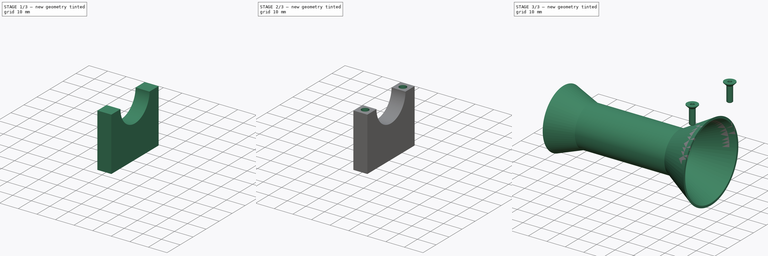
[diagram: build sequence overview — one tinted view per stage of 3, left to right]
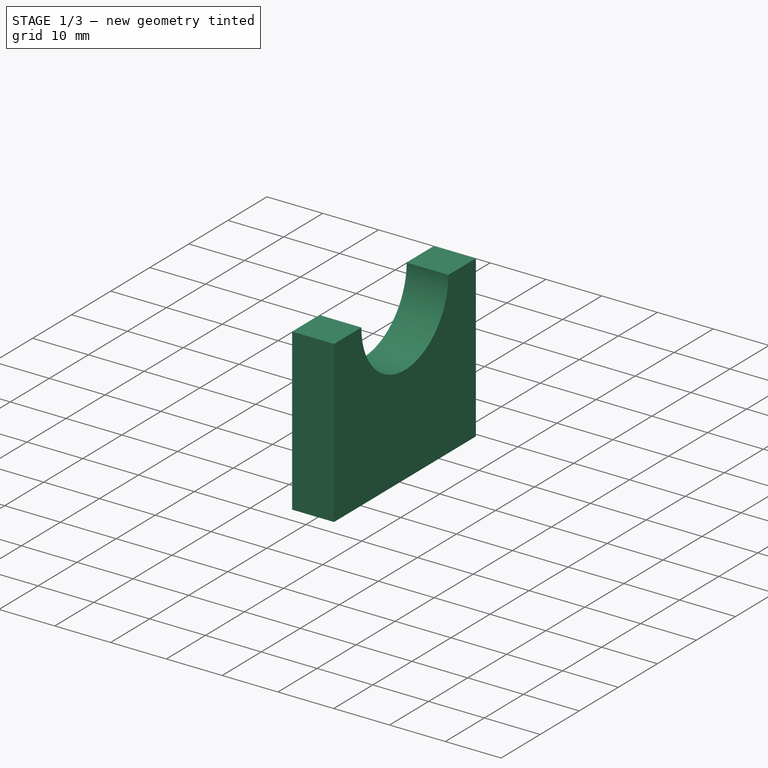
[diagram: stage 1 of 3 — iso view after this stage's code; geometry added in this stage tinted green]
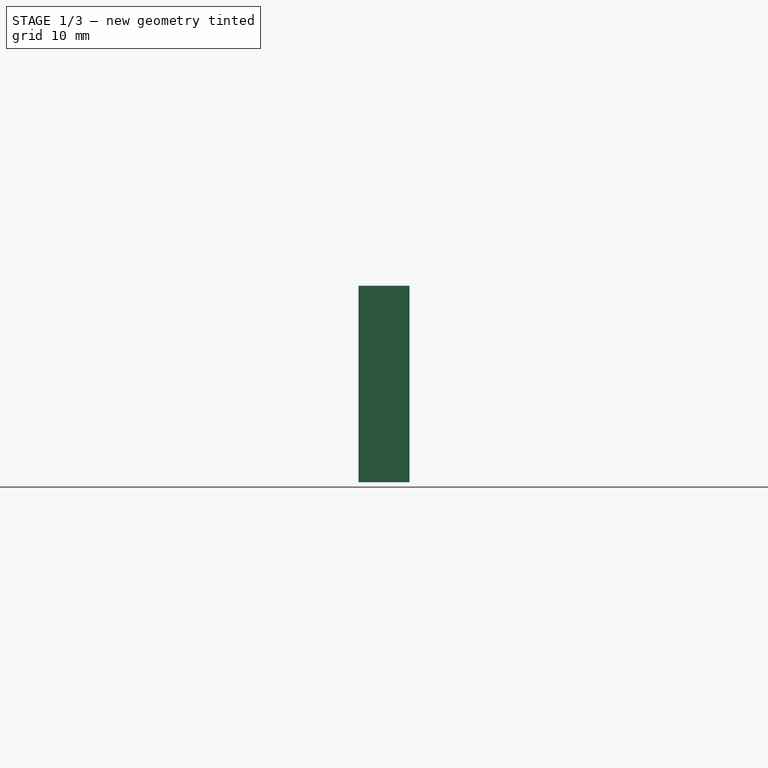
[diagram: stage 1 of 3 — front view after this stage's code; geometry added in this stage tinted green]
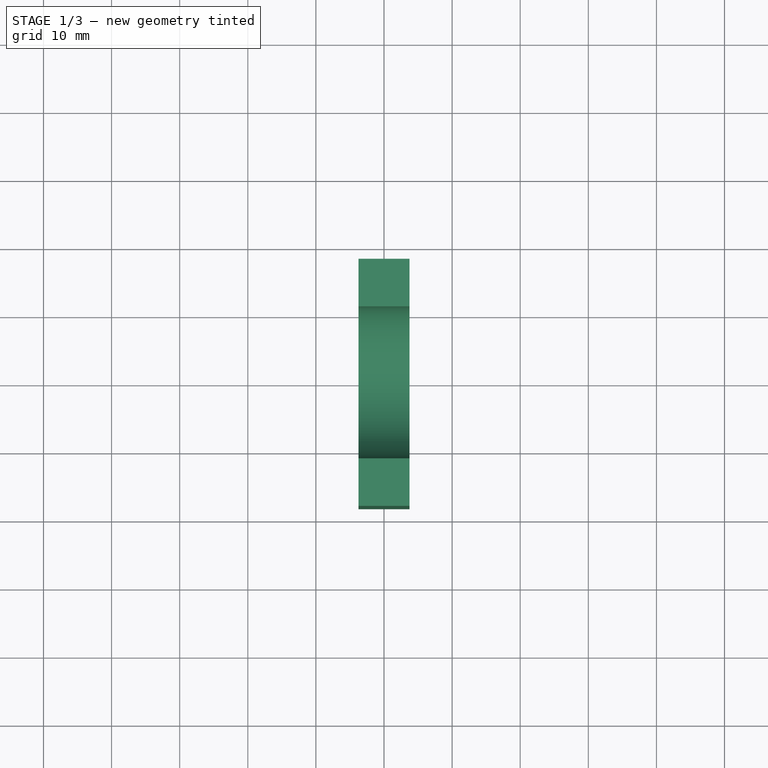
[diagram: stage 1 of 3 — top view after this stage's code; geometry added in this stage tinted green]
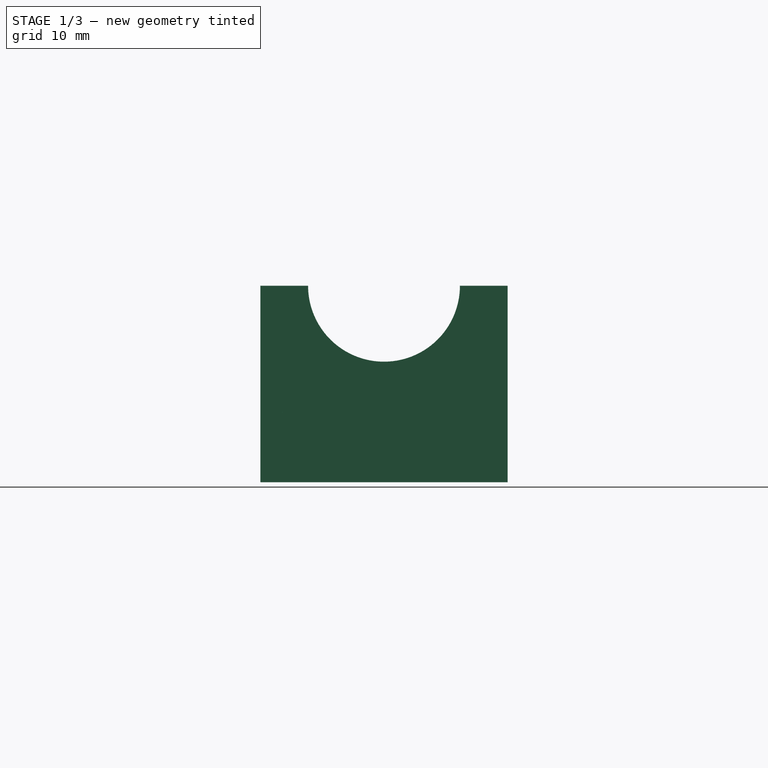
[diagram: stage 1 of 3 — right view after this stage's code; geometry added in this stage tinted green]
FCSTD DOCUMENT  (FreeCAD 1.0RUnknown)
Label: Viewscope
License: All rights reserved
LicenseURL: http://en.wikipedia.org/wiki/All_rights_reserved
objects: PartDesign::CoordinateSystem×7, Sketcher::SketchObject×4, App::Link×4, App::Part×4, App::DocumentObjectGroup×3, PartDesign::Body×3, PartDesign::Hole×3, PartDesign::Pad×2, PartDesign::SubShapeBinder×2, Part::FeaturePython×2, App::FeaturePython×1, PartDesign::Revolution×1
note: 40 computed .brp shape members not serialized (recipe doc carries the construction recipe); baked Part::Feature solids carry a one-line shape summary decoded from their .brp
EXTERNAL_REF file=Resources.FCStd obj=Spreadsheet
EXTERNAL_REF file=Sextant.FCStd obj=Assembly

FEATURE [Sketcher::SketchObject] Sketch002
  ArcFitTolerance = 0
  AttachmentSupport = -> [XZ_Plane007]
  FullyConstrained = true
  MakeInternals = false
  MapMode = 5
  Placement = pos=(0,0,0) rot=(1,0,0;1.5708rad)
  expr: Constraints[30] = <<Dimensions>>.viewscope_wall_thickness
  expr: Constraints[35] = <<Dimensions>>.viewscope_inner_diameter / 2
  expr: Constraints[8] = <<Dimensions>>.viewscope_eye_diameter / 2
  sketch-geometry (12):
    g0: LineSegment StartX=-66.0863 StartY=11 StartZ=0 EndX=-17.5885 EndY=11 EndZ=0
    g1: LineSegment StartX=-17.5885 StartY=11 StartZ=0 EndX=0 EndY=21.1547 EndZ=0
    g2: LineSegment StartX=-66.2626 StartY=10 StartZ=0 EndX=-17.3205 EndY=10 EndZ=0
    g3: LineSegment StartX=-17.3205 StartY=10 StartZ=0 EndX=0 EndY=20 EndZ=0
    g4: LineSegment StartX=0 StartY=21.1547 StartZ=0 EndX=0 EndY=20 EndZ=0
    g5: LineSegment [constr] StartX=0 StartY=20 StartZ=0 EndX=-0.5 EndY=20.866 EndZ=0
    g6: LineSegment StartX=-66.0863 StartY=11 StartZ=0 EndX=-80 EndY=16.0642 EndZ=0
    g7: LineSegment StartX=-66.2626 StartY=10 StartZ=0 EndX=-80 EndY=15 EndZ=0
    g8: LineSegment StartX=-80 StartY=16.0642 StartZ=0 EndX=-80 EndY=15 EndZ=0
    g9: LineSegment [constr] StartX=-80 StartY=15 StartZ=0 EndX=-80 EndY=0 EndZ=0
    g10: LineSegment [constr] StartX=-66.0863 StartY=11 StartZ=0 EndX=-66.0863 EndY=10 EndZ=0
    g11: LineSegment [constr] StartX=-80 StartY=15 StartZ=0 EndX=-79.658 EndY=15.9397 EndZ=0
  constraints (36):
    c: Horizontal(g0)
    c: Coincident(g1,g0)
    c: Horizontal(g2)
    c: Coincident(g3,g2)
    c: Coincident(g4,g1)
    c: Coincident(g4,g3)
    c: Vertical(g4)
    c: PointOnObject(g3,g-2)
    c: Distance(g-1,g3) = 20
    c: Angle(g3,g-2) = 1.0472
    c: Coincident(g5,g3)
    c: PointOnObject(g5,g1)
    c: Perpendicular(g1,g5)
    c: Parallel(g1,g3)
    c: Coincident(g6,g0)
    c: Coincident(g8,g6)
    c: Coincident(g8,g7)
    c: DistanceX(g6,g1) = 80
    c: Coincident(g7,g2)
    c: Vertical(g8)
    c: Coincident(g9,g8)
    c: Vertical(g9)
    c: Angle(g9,g7) = 1.22173
    c: Parallel(g6,g7)
    c: Coincident(g10,g0)
    c: Coincident(g11,g7)
    c: PointOnObject(g11,g6)
    c: Perpendicular(g6,g11)
    c: PointOnObject(g10,g2)
    c: Perpendicular(g2,g10)
    c: Distance(g10) = 1
    c: Equal(g10,g11)
    c: Equal(g10,g5)
    c: DistanceY(g9,g9) = 15
    c: PointOnObject(g9,g-1)
    c: DistanceY(g2) = 10
FEATURE [PartDesign::CoordinateSystem] LCS_Origin
  AttacherType = Attacher::AttachEngine3D
  AttachmentSupport = -> [X_Axis]
  MapMode = 2
FEATURE [App::DocumentObjectGroup] Constraints
FEATURE [App::FeaturePython] Variables  # WARN: FeaturePython — macro-defined, semantics opaque (R4)
  Type = App::PropertyContainer
FEATURE [App::DocumentObjectGroup] Configurations
FEATURE [PartDesign::CoordinateSystem] LCS_Origin001
  AttacherType = Attacher::AttachEngine3D
  AttachmentSupport = -> [X_Axis008]
  MapMode = 2
FEATURE [Sketcher::SketchObject] Sketch
  ArcFitTolerance = 0
  AttachmentSupport = -> [YZ_Plane009]
  FullyConstrained = true
  MakeInternals = false
  MapMode = 5
  Placement = pos=(0,0,0) rot=(0.57735,0.57735,0.57735;2.0944rad)
  expr: Constraints[15] = <<Dimensions>>.view_center_offset_hor - <<Dimensions>>.viewscope_collar_gap / 2
  expr: Constraints[16] = <<Dimensions>>.viewscope_collar_width
  expr: Constraints[8] = <<Dimensions>>.viewscope_inner_diameter / 2 + <<Dimensions>>.viewscope_wall_thickness + <<Dimensions>>.clearance_tight_fit
  sketch-geometry (6):
    g0: LineSegment StartX=-18.15 StartY=28.85 StartZ=0 EndX=-18.15 EndY=0 EndZ=0
    g1: LineSegment StartX=-18.15 StartY=28.85 StartZ=0 EndX=-11.15 EndY=28.85 EndZ=0
    g2: LineSegment StartX=18.15 StartY=0 StartZ=0 EndX=18.15 EndY=28.85 EndZ=0
    g3: LineSegment StartX=18.15 StartY=28.85 StartZ=0 EndX=11.15 EndY=28.85 EndZ=0
    g4: ArcOfCircle CenterX=0 CenterY=28.85 CenterZ=0 NormalX=0 NormalY=0 NormalZ=1 AngleXU=0 Radius=11.15 StartAngle=3.14159 EndAngle=6.28319
    g5: LineSegment StartX=-18.15 StartY=0 StartZ=0 EndX=18.15 EndY=0 EndZ=0
  constraints (19):
    c: PointOnObject(g0,g-1)
    c: Vertical(g0)
    c: Coincident(g1,g0)
    c: PointOnObject(g2,g-1)
    c: Vertical(g2)
    c: Coincident(g3,g2)
    c: PointOnObject(g4,g-2)
    c: Coincident(g4,g1)
    c: Radius(g4) = 11.15
    c: Perpendicular(g4,g1)
    c: Coincident(g4,g3)
    c: Perpendicular(g4,g3)
    c: Horizontal(g1)
    c: Horizontal(g3)
    c: Equal(g1,g3)
    c: DistanceY(g-1,g4) = 28.85
    c: DistanceX(g3,g3) = 7
    c: Coincident(g5,g0)
    c: Coincident(g2,g5)
FEATURE [PartDesign::Pad] Pad
  Direction = (1,0,0)
  Length = 7.5
  Length2 = 10
  Midplane = true
  Placement = pos=(0,0,0) rot=(1,1,1;2.0944rad)
  Profile = -> Sketch
  ReferenceAxis = -> Sketch [N_Axis]
  Suppressed = false
  Type = 0
  expr: Length = <<Dimensions>>.viewscope_collar_thickness
FEATURE [Sketcher::SketchObject] Sketch003
  ArcFitTolerance = 0
  AttachmentSupport = -> [YZ_Plane011]
  FullyConstrained = true
  MakeInternals = false
  MapMode = 5
  Placement = pos=(0,0,0) rot=(0.57735,0.57735,0.57735;2.0944rad)
  expr: Constraints[3] = <<Dimensions>>.viewscope_inner_diameter / 2 + <<Dimensions>>.viewscope_wall_thickness + <<Dimensions>>.clearance_tight_fit
  expr: Constraints[4] = <<Dimensions>>.viewscope_collar_width
  expr: Constraints[8] = <<Dimensions>>.viewscope_collar_gap / 2
  sketch-geometry (7):
    g0: ArcOfCircle CenterX=0 CenterY=0 CenterZ=0 NormalX=0 NormalY=0 NormalZ=1 AngleXU=0 Radius=11.15 StartAngle=0.103323 EndAngle=3.03827
    g1: LineSegment StartX=-18.0905 StartY=1.15 StartZ=0 EndX=-11.0905 EndY=1.15 EndZ=0
    g2: LineSegment StartX=11.0905 StartY=1.15 StartZ=0 EndX=18.0905 EndY=1.15 EndZ=0
    g3: ArcOfCircle CenterX=0 CenterY=0 CenterZ=0 NormalX=0 NormalY=0 NormalZ=1 AngleXU=0 Radius=18.1271 StartAngle=0.0634837 EndAngle=1.0472
    g4: LineSegment StartX=-9.06353 StartY=15.6985 StartZ=0 EndX=9.06353 EndY=15.6985 EndZ=0
    g5: ArcOfCircle CenterX=0 CenterY=0 CenterZ=0 NormalX=0 NormalY=0 NormalZ=1 AngleXU=0 Radius=18.1271 StartAngle=2.0944 EndAngle=3.07811
    g6: LineSegment [constr] StartX=-9.06353 StartY=15.6985 StartZ=0 EndX=0 EndY=20.9313 EndZ=0
  constraints (20):
    c: Coincident(g0,g-1)
    c: Horizontal(g1)
    c: Coincident(g2,g0)
    c: Radius(g0) = 11.15
    c: Distance(g1) = 7
    c: Coincident(g3,g0)
    c: Coincident(g5,g1)
    c: Coincident(g3,g2)
    c: DistanceY(g0,g1) = 1.15
    c: Tangent(g2,g1)
    c: Coincident(g1,g0)
    c: Horizontal(g4)
    c: Equal(g3,g5)
    c: Coincident(g3,g4)
    c: Coincident(g5,g4)
    c: Coincident(g3,g5)
    c: Coincident(g6,g4)
    c: PointOnObject(g6,g-2)
    c: Tangent(g5,g6)
    c: Angle(g4,g6) = 0.523599
FEATURE [PartDesign::Pad] Pad001
  Direction = (1,0,0)
  Length = 7.5
  Length2 = 10
  Midplane = true
  Placement = pos=(0,0,0) rot=(1,1,1;2.0944rad)
  Profile = -> Sketch003
  ReferenceAxis = -> Sketch003 [N_Axis]
  Suppressed = false
  Type = 0
  expr: Length = <<Dimensions>>.viewscope_collar_thickness
FEATURE [App::Link] CollarTop  label="CollarTop001"
  AttachedBy = #LCS_Origin002
  AttachedTo = ClampBottom#LCS_Center
  AttachmentOffset = pos=(0,0,0) rot=(0,0,1;1.5708rad)
  LinkPlacement = pos=(0,0,28.85) rot=(0,0,1;0rad)
  LinkedObject = -> Part
  Placement = pos=(0,0,28.85) rot=(0,0,1;0rad)
  SolverId = Asm4EE
  expr: Placement = ClampBottom.Placement * LCS_Center.Placement * AttachmentOffset * LCS_Origin002.Placement ^ -1
FEATURE [PartDesign::CoordinateSystem] LCS_Origin002
  AttacherType = Attacher::AttachEngine3D
  AttachmentSupport = -> [X_Axis011]
  MapMode = 2
FEATURE [App::Link] Link  label="Dimensions"
  LinkedObject = -> <external Resources.FCStd>#Spreadsheet
FEATURE [PartDesign::SubShapeBinder] Binder001
  BindCopyOnChange = 0
  BindMode = 0
  ClaimChildren = false
  Context = -> <external Sextant.FCStd>#Assembly [Viewscope.CollarTop.Body_2.Binder001.]
  Fuse = false
  MakeFace = true
  OffsetFill = false
  OffsetIntersection = false
  OffsetJoinType = 0
  OffsetOpenResult = false
  PartialLoad = false
  Placement = pos=(0,0,18) rot=(0,0,1;0rad)
  Relative = true
  Support = -> [Sketch004]
  _Version = 2
  expr: .Placement.Base.z = <<Dimensions>>.viewscope_collar_outer_diameter / 2
FEATURE [PartDesign::Hole] Hole
  BaseFeature = -> Pad001
  CustomThreadClearance = 0
  Depth = 82.1542
  DepthType = 1
  Diameter = 3.4
  DrillForDepth = false
  DrillPoint = 1
  DrillPointAngle = 90
  HoleCutCountersinkAngle = 90
  HoleCutCustomValues = false
  HoleCutDepth = 12.85
  HoleCutDiameter = 6
  HoleCutType = 3
  ModelThread = false
  Placement = pos=(0,0,0) rot=(1,1,1;2.0944rad)
  Profile = -> Binder001
  Suppressed = false
  Tapered = false
  TaperedAngle = 90
  ThreadClass = 0
  ThreadDepth = 82.034
  ThreadDepthType = 0
  ThreadDirection = 0
  ThreadFit = 0
  ThreadSize = 9
  ThreadType = 1
  Threaded = false
  UseCustomThreadClearance = false
  expr: HoleCutDepth = <<Dimensions>>.viewscope_collar_outer_diameter / 2 - <<Dimensions>>.viewscope_collar_gap / 2 - <<Dimensions>>.viewscope_screwhead_support_thickness
  expr: HoleCutDiameter = <<Dimensions>>.viewscope_screw_head_diameter + 2 * <<Dimensions>>.clearance_loose_fit
  expr: ThreadSize = <<Dimensions>>.viewscope_screw_type
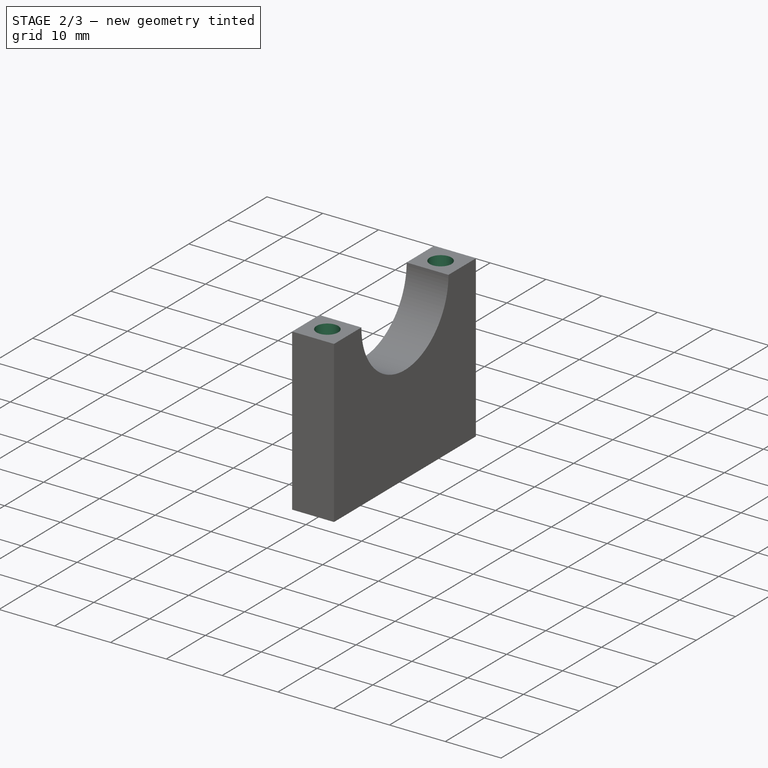
[diagram: stage 2 of 3 — iso view after this stage's code; geometry added in this stage tinted green]
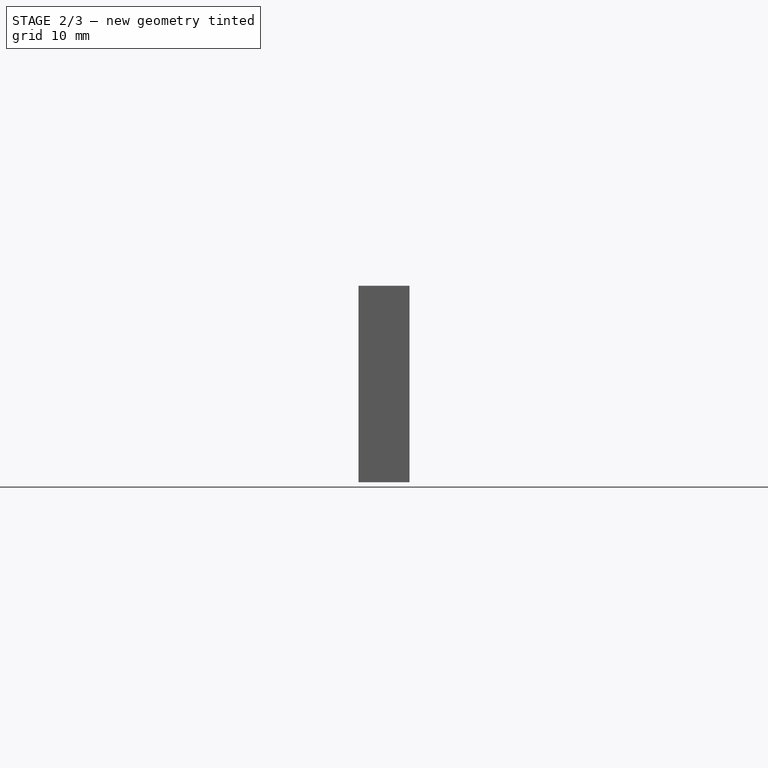
[diagram: stage 2 of 3 — front view after this stage's code; geometry added in this stage tinted green]
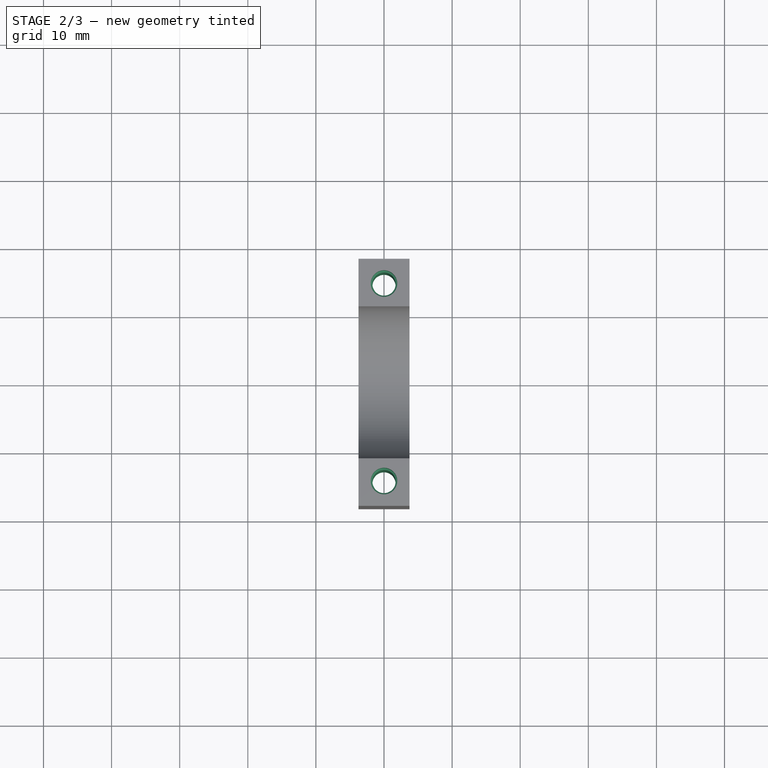
[diagram: stage 2 of 3 — top view after this stage's code; geometry added in this stage tinted green]
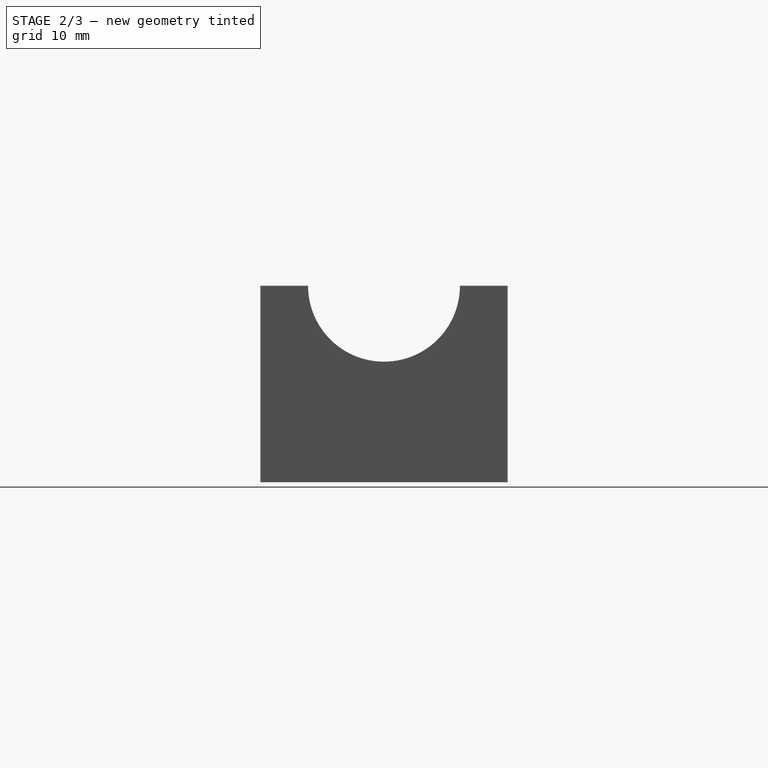
[diagram: stage 2 of 3 — right view after this stage's code; geometry added in this stage tinted green]
FEATURE [PartDesign::Body] Body002
  AllowCompound = false
  Group = -> [Sketch002,Revolution]
  Origin = -> Origin007
  Tip = -> Revolution
FEATURE [App::Link] ClampBottom  label="ClampBottom001"
  AttachedBy = #LCS_Origin001
  AttachedTo = Parent Assembly#LCS_Origin
  LinkedObject = -> HolderBottom
  SolverId = Asm4EE
  expr: Placement = LCS_Origin.Placement * AttachmentOffset * LCS_Origin001.Placement ^ -1
FEATURE [PartDesign::CoordinateSystem] LCS_Center
  AttacherType = Attacher::AttachEngine3D
  AttachmentSupport = -> [Sketch]
  MapMode = 12
  Placement = pos=(0,0,28.85) rot=(0,0,-1;1.5708rad)
FEATURE [PartDesign::CoordinateSystem] LCS_Clamp1  label="LCS_Collar"
  AttacherType = Attacher::AttachEngine3D
  AttachmentSupport = -> [Revolution]
  MapMode = 45
  Placement = pos=(-41.8374,-1e-16,1.8e-15) rot=(0.57735,0.57735,0.57735;2.0944rad)
FEATURE [App::Part] Part001  label="Viewscope"
  Group = -> [Body002,LCS_Clamp1]
  Origin = -> Origin006
FEATURE [App::Link] Viewscope  label="Viewscope001"
  AttachedBy = #LCS_Clamp1
  AttachedTo = ClampBottom#LCS_Center
  AttachmentOffset = pos=(0,0,0) rot=(0,-0.707107,-0.707107;3.14159rad)
  LinkPlacement = pos=(41.8374,1.52e-14,28.85) rot=(0,0,1;0rad)
  LinkedObject = -> Part001
  Placement = pos=(41.8374,1.52e-14,28.85) rot=(0,0,1;0rad)
  SolverId = Asm4EE
  expr: Placement = ClampBottom.Placement * LCS_Center.Placement * AttachmentOffset * LCS_Clamp1.Placement ^ -1
FEATURE [Sketcher::SketchObject] Sketch004
  ArcFitTolerance = 0
  AttachmentSupport = -> [XY_Plane011]
  FullyConstrained = true
  MakeInternals = false
  MapMode = 5
  expr: .Constraints.hole_distance = <<Dimensions>>.viewscope_inner_diameter + 2 * <<Dimensions>>.viewscope_wall_thickness + <<Dimensions>>.viewscope_collar_width
  expr: Constraints[1] = <<Dimensions>>.viewscope_screw_diameter
  sketch-geometry (2):
    g0: Circle CenterX=0 CenterY=14.5 CenterZ=0 NormalX=0 NormalY=0 NormalZ=1 AngleXU=0 Radius=1.5
    g1: Circle CenterX=0 CenterY=-14.5 CenterZ=0 NormalX=0 NormalY=0 NormalZ=1 AngleXU=0 Radius=1.5
  constraints (5):
    c: Equal(g0,g1)
    c: Diameter(g0) = 3
    c: PointOnObject(g1,g-2)
    c: Distance(g0,g1) = 29  'hole_distance'
    c: Symmetric(g1,g0,g-1)
FEATURE [PartDesign::SubShapeBinder] Binder
  BindCopyOnChange = 0
  BindMode = 0
  ClaimChildren = false
  Context = -> HolderBottom [Body.Binder.]
  Fuse = false
  MakeFace = true
  OffsetFill = false
  OffsetIntersection = false
  OffsetJoinType = 0
  OffsetOpenResult = false
  PartialLoad = false
  Relative = true
  Support = -> [Part[Body_2.Hole.Sketch004.]]
  _Version = 2
FEATURE [PartDesign::Hole] Hole001
  BaseFeature = -> Pad
  CustomThreadClearance = 0
  Depth = 94.9755
  DepthType = 1
  Diameter = 3.4
  DrillForDepth = false
  DrillPoint = 1
  DrillPointAngle = 118
  HoleCutCountersinkAngle = 90
  HoleCutCustomValues = false
  HoleCutDepth = 4
  HoleCutDiameter = 3.9
  HoleCutType = 3
  ModelThread = false
  Placement = pos=(0,0,0) rot=(1,1,1;2.0944rad)
  Profile = -> Binder
  Reversed = true
  Suppressed = false
  Tapered = false
  TaperedAngle = 90
  ThreadClass = 0
  ThreadDepth = 94.8812
  ThreadDepthType = 0
  ThreadDirection = 0
  ThreadFit = 0
  ThreadSize = 9
  ThreadType = 1
  Threaded = false
  UseCustomThreadClearance = false
  expr: HoleCutDepth = <<Dimensions>>.viewscope_ti_L
  expr: HoleCutDiameter = <<Dimensions>>.viewscope_ti_D
  expr: ThreadSize = <<Dimensions>>.viewscope_screw_type
FEATURE [PartDesign::Body] Body_2  label="CollarBottomBody"
  AllowCompound = false
  Group = -> [Sketch003,Pad001,Sketch004,Binder001,Hole]
  Origin = -> Origin011
  Tip = -> Hole
FEATURE [PartDesign::CoordinateSystem] LCS_test  label="LCS_Bolt1"
  AttacherType = Attacher::AttachEngine3D
  AttachmentOffset = pos=(0,0,5.15) rot=(0,0,1;0rad)
  AttachmentSupport = -> [Sketch004]
  MapMode = 11
  Placement = pos=(0,-14.5,5.15) rot=(0,0,1;1.5708rad)
  expr: .AttachmentOffset.Base.z = <<Dimensions>>.viewscope_collar_gap / 2 + <<Dimensions>>.viewscope_screwhead_support_thickness
FEATURE [PartDesign::CoordinateSystem] LCS_Bolt2
  AttacherType = Attacher::AttachEngine3D
  AttachmentOffset = pos=(0,0,5.15) rot=(0,0,1;0rad)
  AttachmentSupport = -> [Sketch004]
  MapMode = 11
  Placement = pos=(0,14.5,5.15) rot=(0,0,1;1.5708rad)
  expr: .AttachmentOffset.Base.z = <<Dimensions>>.viewscope_collar_gap / 2 + <<Dimensions>>.viewscope_screwhead_support_thickness
FEATURE [App::Part] Part  label="CollarTop"
  Group = -> [Body_2,LCS_Origin002,LCS_test,LCS_Bolt2]
  Origin = -> Origin010
FEATURE [PartDesign::Hole] Hole002
  BaseFeature = -> Hole001
  CustomThreadClearance = 0
  Depth = 94.9755
  DepthType = 1
  Diameter = 3.4
  DrillForDepth = false
  DrillPoint = 1
  DrillPointAngle = 118
  HoleCutCountersinkAngle = 90
  HoleCutCustomValues = false
  HoleCutDepth = 4
  HoleCutDiameter = 3.9
  HoleCutType = 3
  ModelThread = false
  Placement = pos=(0,0,0) rot=(1,1,1;2.0944rad)
  Profile = -> Hole001 [Edge8,Edge28]
  Suppressed = false
  Tapered = false
  TaperedAngle = 90
  ThreadClass = 0
  ThreadDepth = 94.8812
  ThreadDepthType = 0
  ThreadDirection = 0
  ThreadFit = 0
  ThreadSize = 9
  ThreadType = 1
  Threaded = false
  UseCustomThreadClearance = false
  expr: HoleCutDepth = <<Dimensions>>.viewscope_ti_L
  expr: HoleCutDiameter = <<Dimensions>>.viewscope_ti_D
  expr: ThreadSize = <<Dimensions>>.viewscope_screw_type
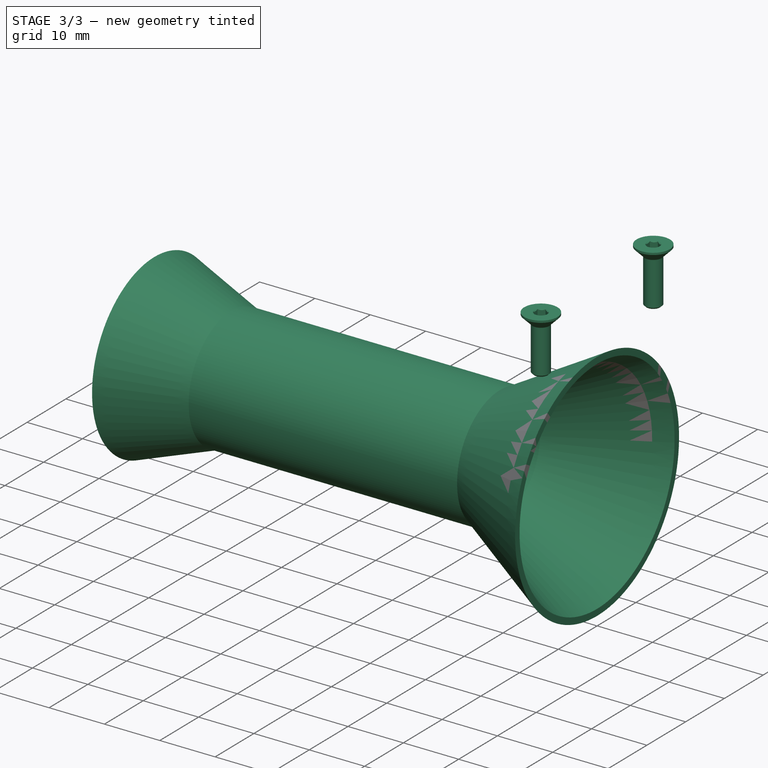
[diagram: stage 3 of 3 — iso view after this stage's code; geometry added in this stage tinted green]
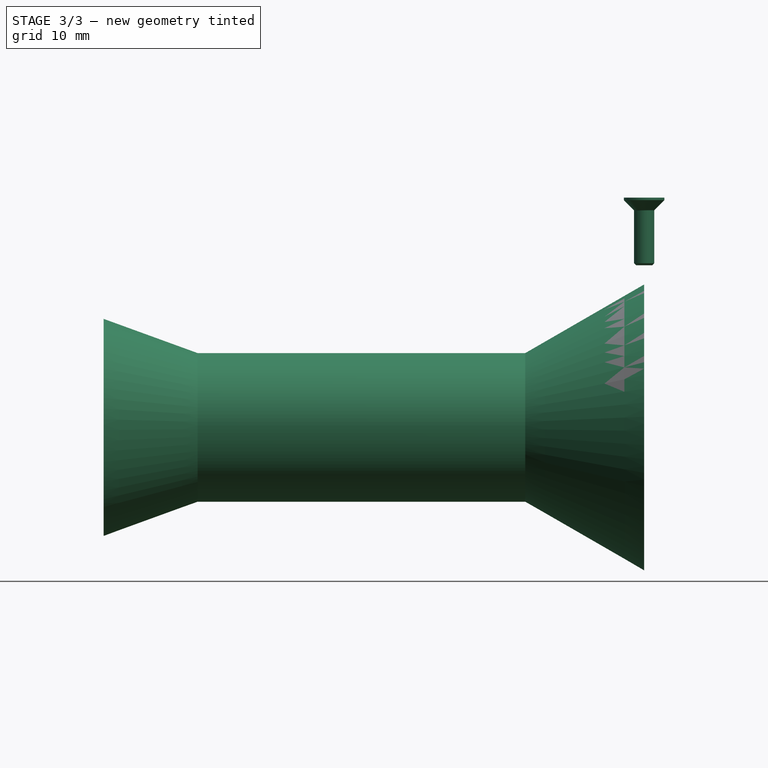
[diagram: stage 3 of 3 — front view after this stage's code; geometry added in this stage tinted green]
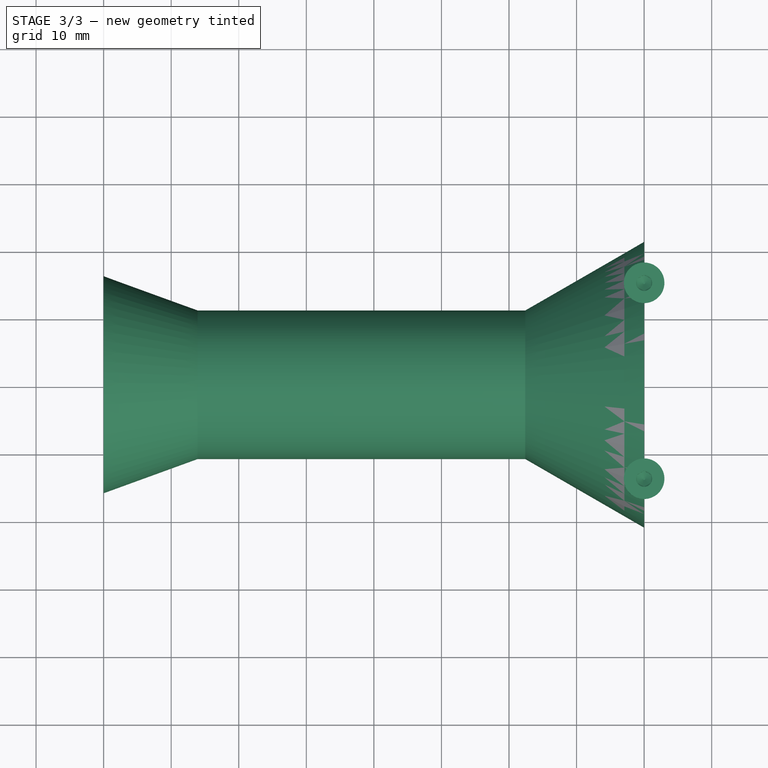
[diagram: stage 3 of 3 — top view after this stage's code; geometry added in this stage tinted green]
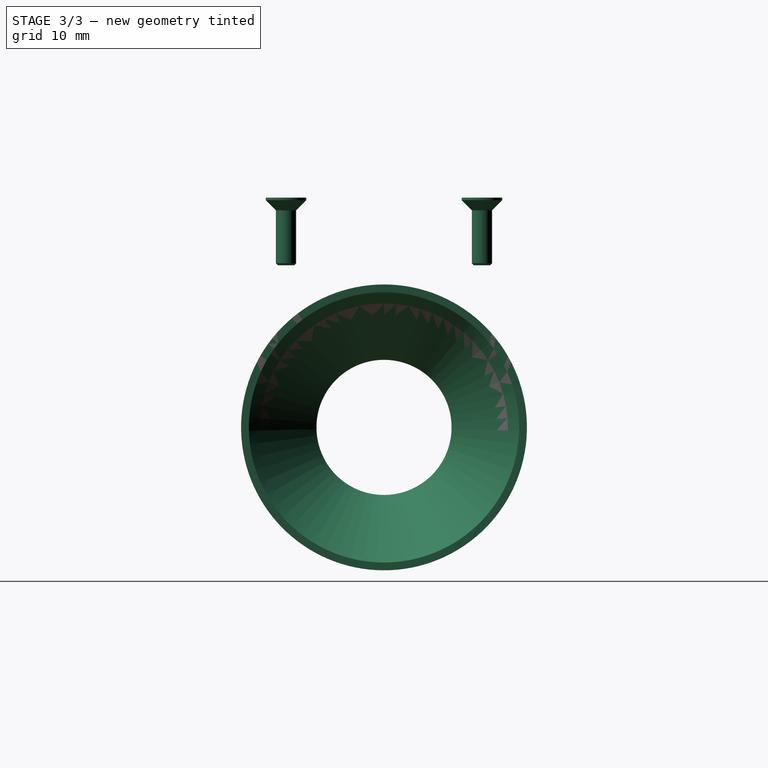
[diagram: stage 3 of 3 — right view after this stage's code; geometry added in this stage tinted green]
FEATURE [PartDesign::Revolution] Revolution
  Angle = 360
  Angle2 = 60
  Axis = (1,0,0)
  Base = (0,0,0)
  Placement = pos=(0,0,0) rot=(1,0,0;1.5708rad)
  Profile = -> Sketch002
  ReferenceAxis = -> Sketch002 [H_Axis]
  Suppressed = false
  Type = 0
FEATURE [PartDesign::Body] Body
  AllowCompound = false
  Group = -> [Sketch,Pad,Binder,Hole001,Hole002]
  Origin = -> Origin009
  Tip = -> Hole002
FEATURE [App::Part] HolderBottom  label="CollarBottom"
  Group = -> [LCS_Origin001,Body,LCS_Center]
  Origin = -> Origin008
FEATURE [App::DocumentObjectGroup] Parts
  Group = -> [Part001,HolderBottom,Part]
FEATURE [Part::FeaturePython] Screw  label="M3x10-Screw001"  # WARN: FeaturePython — macro-defined, semantics opaque (R4)
  AttachedBy = Origin
  AttachedTo = CollarTop#LCS_test
  Diameter = 3
  Invert = false
  LeftHanded = false
  Length = 1
  LengthCustom = 10
  MatchOuter = false
  OffsetAngle = 0
  Placement = pos=(0,-14.5,34) rot=(0,0,1;1.5708rad)
  SolverId = Asm4EE
  Thread = false
  Type = 50
  expr: Diameter = <<Dimensions>>.viewscope_screw_type
  expr: Placement = CollarTop.Placement * LCS_test.Placement * AttachmentOffset
FEATURE [Part::FeaturePython] Screw001  label="M3x10-Screw"  # WARN: FeaturePython — macro-defined, semantics opaque (R4)
  AttachedBy = Origin
  AttachedTo = CollarTop#LCS_Bolt2
  Diameter = 3
  Invert = false
  LeftHanded = false
  Length = 1
  LengthCustom = 10
  MatchOuter = false
  OffsetAngle = 0
  Placement = pos=(0,14.5,34) rot=(0,0,1;1.5708rad)
  SolverId = Asm4EE
  Thread = false
  Type = 50
  expr: Diameter = <<Dimensions>>.viewscope_screw_type
  expr: Placement = CollarTop.Placement * LCS_Bolt2.Placement * AttachmentOffset
FEATURE [App::Part] Assembly
  AssemblyType = Part::Link
  Group = -> [LCS_Origin,Constraints,Variables,Configurations,ClampBottom,Viewscope,CollarTop,Screw,Screw001]
  Origin = -> Origin
  Type = Assembly

RESOLVED EXTERNAL PARTS (link-assembly join: the EXTERNAL_REF files above that resolve inside this repo's crawl, each included once):
---- part Resources.FCStd = doc fcstd_cf5bf867b5fe ----
FCSTD DOCUMENT  (FreeCAD 0.21RUnknown)
Label: Resources
License: All rights reserved
LicenseURL: http://en.wikipedia.org/wiki/All_rights_reserved
objects: Spreadsheet::Sheet×3

FEATURE [Spreadsheet::Sheet] Spreadsheet  label="Dimensions"
  cells = A1='Name; B1='Dimension; C1='Constraints; D1='set by; A3='General; A4='Clearance Loose Fit; B4(clearance_loose_fit)==max(<<Config>>.clearance_loose_fit; 0 mm); C4='>= 0; D4='user; A5='Clearance Tight Fit; B5(clearance_tight_fit)==max(<<Config>>.clearance_tight_fit; 0 mm); C5='>= 0; D5='user; A6='Minimum Wall thickness; B6(minimum_wall_thickness)==max(<<Config>>.minimum_wall_thickness; 0 mm); C6='>= 0; D6='user; A7='View Center Horizontal Offset; B7(view_center_offset_hor)==max(<<Config>>.view_center_offset_hor; 0 mm); C7='>= 0; D7='user; A8='View Center Vertical Offset; B8(view_center_offset_vert)==max(<<Config>>.view_center_offset_vert; 0 mm); C8='>= 0; D8='user; A9='Spacing between Index arm and Frame; B9(index_arm_spacing)==max(<<Config>>.index_arm_spacing; 0 mm); C9='>= 0; D9='user; A10='Screw Hole Extra Depth; B10(screw_hole_extra_depth)==max(0 mm; Spreadsheet001.screw_hole_extra_depth); C10='>= 0; D10='user; A12='Handle; A13='Outer Width; B13(handle_outer_width)==max(<<Config>>.handle_width; minimum_wall_thickness); C13='>= Min wall thickness; D13='user; A14='Inner Width; B14(handle_inner_width)==max(handle_connector_screw_diameter + 2 * minimum_wall_thickness; handle_outer_width - handle_height / 6); C14='>= 2* Min wall thickness +  screw diameter; D14='calc; A15='Height; B15(handle_height)==max(<<Config>>.handle_height; minimum_wall_thickness); C15='>= Min wall thickness; D15='user; A16='Length; B16(handle_length)==max(<<Config>>.handle_length; minimum_wall_thickness); C16='>= Min wall thickness; D16='user; A17='Screw Type; B17(handle_screw_type)==<<Config>>.handle_screw_type; C17='TODO: restrict to M2.M3,M4,M6,M8; D17='user; A18='Connector Screw Diameter; B18(handle_connector_screw_diameter)==handle_screw_type == <<ConfiguartionTables>>.screws_name_m2 ? <<ConfiguartionTables>>.screws_ds_m2 : (handle_screw_type == <<ConfiguartionTables>>.screws_name_m3 ? <<ConfiguartionTables>>.screws_ds_m3 : (handle_screw_type == <<ConfiguartionTables>>.screws_name_m4 ? <<ConfiguartionTables>>.screws_ds_m4 : (handle_screw_type == <<ConfiguartionTables>>.screws_name_m6 ? <<ConfiguartionTables>>.screws_ds_m6 : (handle_screw_type == <<ConfiguartionTables>>.screws_name_m8 ? <<ConfiguartionTables>>.screws_ds_m8 : <<ConfiguartionTables>>.screws_ds_m3)))); C18='none; D18='calc; A19='Screw Countersink Diameter; B19(handle_countersink_diameter)==handle_screw_type == <<ConfiguartionTables>>.screws_name_m2 ? <<ConfiguartionTables>>.screws_dk_10642_m2 : (handle_screw_type == <<ConfiguartionTables>>.screws_name_m3 ? <<ConfiguartionTables>>.screws_dk_10642_m3 : (handle_screw_type == <<ConfiguartionTables>>.screws_name_m4 ? <<ConfiguartionTables>>.screws_dk_10642_m4 : (handle_screw_type == <<ConfiguartionTables>>.screws_name_m6 ? <<ConfiguartionTables>>.screws_dk_10642_m6 : (handle_screw_type == <<ConfiguartionTables>>.screws_name_m8 ? <<ConfiguartionTables>>.screws_dk_10642_m8 : <<ConfiguartionTables>>.screws_dk_10642_m3)))); C19='none; D19='calc; A20='Nut Width (S); B20(handle_nut_S)==handle_screw_type == <<ConfiguartionTables>>.screws_name_m2 ? <<ConfiguartionTables>>.nut_S_m2 : (handle_screw_type == <<ConfiguartionTables>>.screws_name_m3 ? <<ConfiguartionTables>>.nut_S_m3 : (handle_screw_type == <<ConfiguartionTables>>.screws_name_m4 ? <<ConfiguartionTables>>.nut_S_m4 : (handle_screw_type == <<ConfiguartionTables>>.screws_name_m6 ? <<ConfiguartionTables>>.nut_S_m6 : (handle_screw_type == <<ConfiguartionTables>>.screws_name_m8 ? <<ConfiguartionTables>>.nut_S_m8 : <<ConfiguartionTables>>.nut_S_m3)))); C20='none; D20='calc; A21='Nut Thickness (M); B21(handle_nut_M)==handle_screw_type == <<ConfiguartionTables>>.screws_name_m2 ? <<ConfiguartionTables>>.nut_M_m2 : (handle_screw_type == <<ConfiguartionTables>>.screws_name_m3 ? <<ConfiguartionTables>>.nut_M_m3 : (handle_screw_type == <<ConfiguartionTables>>.screws_name_m4 ? <<ConfiguartionTables>>.nut_M_m4 : (handle_screw_type == <<ConfiguartionTables>>.screws_name_m6 ? <<ConfiguartionTables>>.nut_M_m6 : (handle_screw_type == <<ConfiguartionTables>>.screws_name_m8 ? <<ConfiguartionTables>>.nut_M_m8 : <<ConfiguartionTables>>.nut_M_m3)))); C21='none; D21='calc; A22='Screw Length; B22(handle_screw_length)==max(0 mm; <<Config>>.handle_screw_length); C22='>= 0 ; D22='user; A23='Screw Hole Depth; B23(handle_screw_hole_depth)==handle_screw_length + screw_hole_extra_depth - frame_thickness; C23='none; D23='calc; A24='Handle Threaded Insert Diameter; B24(handle_ti_D)==handle_screw_type == <<ConfiguartionTables>>.screws_name_m2 ? <<ConfiguartionTables>>.ti_D_m2 : (handle_screw_type == <<ConfiguartionTables>>.screws_name_m3 ? <<ConfiguartionTables>>.ti_D_m3 : (handle_screw_type == <<ConfiguartionTables>>.screws_name_m4 ? <<ConfiguartionTables>>.ti_D_m4 : (handle_screw_type == <<ConfiguartionTables>>.screws_name_m6 ? <<ConfiguartionTables>>.ti_D_m6 : (handle_screw_type == <<ConfiguartionTables>>.screws_name_m8 ? <<ConfiguartionTables>>.ti_D_m8 : <<ConfiguartionTables>>.ti_D_m3)))); C24='none; D24='calc; A25='Handle Threaded Insert Depth; B25(handle_ti_L)==handle_screw_type == <<ConfiguartionTables>>.screws_name_m2 ? <<ConfiguartionTables>>.ti_L_m2 : (handle_screw_type == <<ConfiguartionTables>>.screws_name_m3 ? <<ConfiguartionTables>>.ti_L_m3 : (handle_screw_type == <<ConfiguartionTables>>.screws_name_m4 ? <<ConfiguartionTables>>.ti_L_m4 : (handle_screw_type == <<ConfiguartionTables>>.screws_name_m6 ? <<ConfiguartionTables>>.ti_L_m6 : (handle_screw_type == <<ConfiguartionTables>>.screws_name_m8 ? <<ConfiguartionTables>>.ti_L_m8 : <<ConfiguartionTables>>.ti_L_m3)))); C25='none; D25='calc; A27='Frame; A28='Width; B28(frame_width)==15 mm; A29='Thickness; B29(frame_thickness)==max(<<Config>>.frame_thickness; minimum_wall_thickness); C29='<= min wall thickness; D29='user; A32='Shaft Spacer Diameter; B32(spacer_diameter)==10 mm; A41='Mirrors; A42='Frame Thickness; B42(mirror_frame_thickness)==max(minimum_wall_thickness; <<Config>>.mirror_frame_thickness); C42='>= min wall thickness; D42='user; A43='Frame Width; B43(mirror_frame_width)==max(minimum_wall_thickness; <<Config>>.mirror_frame_width); C43='>= min wall thickness; D43='user; A44='Adjustment Screw type; B44(mirror_adjustment_screw_type)==<<Config>>.mirror_adjustment_screw_type; C44='TODO: restrict to M2.M3,M4,M6,M8; D44='user; A45='Adjustment Screw Diameter; B45(mirror_adjustment_screw_diameter)==mirror_adjustment_screw_type == <<ConfiguartionTables>>.screws_name_m2 ? <<ConfiguartionTables>>.screws_ds_m2 : (mirror_adjustment_screw_type == <<ConfiguartionTables>>.screws_name_m3 ? <<ConfiguartionTables>>.screws_ds_m3 : (mirror_adjustment_screw_type == <<ConfiguartionTables>>.screws_name_m4 ? <<ConfiguartionTables>>.screws_ds_m4 : (mirror_adjustment_screw_type == <<ConfiguartionTables>>.screws_name_m6 ? <<ConfiguartionTables>>.screws_ds_m6 : (mirror_adjustment_screw_type == <<ConfiguartionTables>>.screws_name_m8 ? <<ConfiguartionTables>>.screws_ds_m8 : <<ConfiguartionTables>>.screws_ds_m3)))); C45='none; D45='calc; A46='Adjustment Screw Threaded Insert Diameter; B46(mirror_adjustment_ti_D)==viewscope_screw_type == <<ConfiguartionTables>>.screws_name_m2 ? <<ConfiguartionTables>>.ti_D_m2 : (viewscope_screw_type == <<ConfiguartionTables>>.screws_name_m3 ? <<ConfiguartionTables>>.ti_D_m3 : (viewscope_screw_type == <<ConfiguartionTables>>.screws_name_m4 ? <<ConfiguartionTables>>.ti_D_m4 : (viewscope_screw_type == <<ConfiguartionTables>>.screws_name_m6 ? <<ConfiguartionTables>>.ti_D_m6 : (viewscope_screw_type == <<ConfiguartionTables>>.screws_name_m8 ? <<ConfiguartionTables>>.ti_D_m8 : <<ConfiguartionTables>>.ti_D_m3)))); C46='none; D46='calc; A47='Adjustment Screw Threaded Insert Depth; B47(mirror_adjustment_ti_L)==mirror_adjustment_screw_type == <<ConfiguartionTables>>.screws_name_m2 ? <<ConfiguartionTables>>.ti_L_m2 : (mirror_adjustment_screw_type == <<ConfiguartionTables>>.screws_name_m3 ? <<ConfiguartionTables>>.ti_L_m3 : (mirror_adjustment_screw_type == <<ConfiguartionTables>>.screws_name_m4 ? <<ConfiguartionTables>>.ti_L_m4 : (mirror_adjustment_screw_type == <<ConfiguartionTables>>.screws_name_m6 ? <<ConfiguartionTables>>.ti_L_m6 : (mirror_adjustment_screw_type == <<ConfiguartionTables>>.screws_name_m8 ? <<ConfiguartionTables>>.ti_L_m8 : <<ConfiguartionTables>>.ti_L_m3)))); C47='none; D47='calc; A49='Mirror Clip; A50='Clip Width; B50(mirror_clip_width)==max(<<Config>>.mirror_clip_width; mirror_adjustment_screw_diameter + 2 * minimum_wall_thickness); C50='>= screw hole diameter + 2* min wall thickness; D50='user; A51='Clip Thickness; B51(mirror_clip_thickness)==max(<<Config>>.mirror_clip_thickness; 0 mm); C51='>= 0; D51='user; A52='Minimum Bend Radius; B52(mirror_clip_minimum_bend_radius)==max(<<Config>>.mirror_clip_minimum_bend_radius; 0 mm); C52='>= 0; D52='user; A53='Mirror Edge Distance; B53(mirror_clip_edge_distance)==max(<<Config>>.mirror_clip_edge_distance; 0 mm); C53='>= 0; D53='user; A55='Horizon Mirror; A56='Mirror Width; B56(horizon_mirror_mirror_width)==max(<<Config>>.horizon_mirror_mirror_width; 0 mm); C56='>= 0; D56='user; A57='MIrror Height; B57(horizon_mirror_mirror_height)==max(<<Config>>.horizon_mirror_mirror_height; 0 mm); C57='>= 0; D57='user; A58='Mirror Thickness; B58(horizon_mirror_mirror_thickness)==max(<<Config>>.horizon_mirror_mirror_thickness; 0 mm); C58='>= 0; D58='user; A59='Base Width; B59(horizon_mirror_base_width)==3 mm; A60='Base Thickness; B60(horizon_mirror_base_thickness)==max(<<Config>>.horizon_mirror_base_thickness; minimum_wall_thickness); C60='>= min wall thickness; D60='user; A61='Frame Lip Width; B61(horizon_mirror_frame_lip_width)==max(<<Config>>.horizon_mirror_frame_lip_width; 0 mm); C61='>= 0mm; D61='user; A62='Attachment Screw Type; B62(horizon_mirror_screw_type)==<<Config>>.horizon_mirror_screw_type; C62='TODO: restrict to M2.M3,M4,M6,M8; D62='user; A63='Attachment Screw Diameter; B63(horizon_mirror_screw_diameter)==horizon_mirror_screw_type == <<ConfiguartionTables>>.screws_name_m2 ? <<ConfiguartionTables>>.screws_ds_m2 : (horizon_mirror_screw_type == <<ConfiguartionTables>>.screws_name_m3 ? <<ConfiguartionTables>>.screws_ds_m3 : (horizon_mirror_screw_type == <<ConfiguartionTables>>.screws_name_m4 ? <<ConfiguartionTables>>.screws_ds_m4 : (horizon_mirror_screw_type == <<ConfiguartionTables>>.screws_name_m6 ? <<ConfiguartionTables>>.screws_ds_m6 : (horizon_mirror_screw_type == <<ConfiguartionTables>>.screws_name_m8 ? <<ConfiguartionTables>>.screws_ds_m8 : <<ConfiguartionTables>>.screws_ds_m3)))); C63='none; D63='calc; A64='Connector Screw Countersink Diameter; B64(horizon_mirror_countersink_diameter)==horizon_mirror_screw_type == <<ConfiguartionTables>>.screws_name_m2 ? <<ConfiguartionTables>>.screws_dk_10642_m2 : (horizon_mirror_screw_type == <<ConfiguartionTables>>.screws_name_m3 ? <<ConfiguartionTables>>.screws_dk_10642_m3 : (horizon_mirror_screw_type == <<ConfiguartionTables>>.screws_name_m4 ? <<ConfiguartionTables>>.screws_dk_10642_m4 : (horizon_mirror_screw_type == <<ConfiguartionTables>>.screws_name_m6 ? <<ConfiguartionTables>>.screws_dk_10642_m6 : (horizon_mirror_screw_type == <<ConfiguartionTables>>.screws_name_m8 ? <<ConfiguartionTables>>.screws_dk_10642_m8 : <<ConfiguartionTables>>.screws_dk_10642_m3)))); C64='none; D64='calc; A65='Nut Width (S); B65(index_mirror_nut_S)==horizon_mirror_screw_type == <<ConfiguartionTables>>.screws_name_m2 ? <<ConfiguartionTables>>.nut_S_m2 : (horizon_mirror_screw_type == <<ConfiguartionTables>>.screws_name_m3 ? <<ConfiguartionTables>>.nut_S_m3 : (horizon_mirror_screw_type == <<ConfiguartionTables>>.screws_name_m4 ? <<ConfiguartionTables>>.nut_S_m4 : (horizon_mirror_screw_type == <<ConfiguartionTables>>.screws_name_m6 ? <<ConfiguartionTables>>.nut_S_m6 : (horizon_mirror_screw_type == <<ConfiguartionTables>>.screws_name_m8 ? <<ConfiguartionTables>>.nut_S_m8 : <<ConfiguartionTables>>.nut_S_m3)))); C65='none; D65='calc; A66='Offset; B66(horizon_mirror_offset)==80 mm; A67='Angle; B67(horizon_mirror_angle)==atan(view_center_offset_vert / horizon_mirror_offset) / 2; D67='calc; A68='Mirror Offset Origin; B68(horizon_mirror_mirror_offset)==view_center_offset_hor - horizon_mirror_mirror_height / 2; C68='none; D68='calc; A70='Index Mirror; A71='MIrror Width; B71(index_mirror_mirror_width)==max(<<Config>>.index_mirror_mirror_width; 0 mm); C71='>= 0; D71='user; A72='Mirror Height; B72(index_mirror_mirror_height)==max(<<Config>>.index_mirror_mirror_height; 0 mm); C72='>= 0; D72='user; A73='Mirror Thickness; B73(index_mirror_mirror_thickness)==max(<<Config>>.index_mirror_mirror_thickness; 0 mm); C73='>= 0; D73='user; A74='Base Diameter; B74(index_mirror_base_diameter)==index_mirror_mirror_width + 2 * mirror_frame_width; +232 more cells
FEATURE [Spreadsheet::Sheet] Spreadsheet001  label="Config"
  cells = A1='Name; B1='Value; C1='Description; A3='General; A4='Minimum Wall thickness; B4(minimum_wall_thickness)==0.5 mm; C4='General minimum Wall thickness. Walls get limited by this value; A5='Clearance Loose Fit; B5(clearance_loose_fit)==0.25 mm; C5='Clearance to achieve a loose fit (for interactions without tight tolerances). Does not apply to screws; A6='Clearance Tight Fit; B6(clearance_tight_fit)==0.15 mm; C6='Clearance to achieve a tight fit (for interactions with tight tolerances). Does not apply to screws; A7='View Center Horizontal Offset; B7(view_center_offset_hor)==30 mm; C7='Horizontal offset of the center of the view when looking through the scope. This is measured from the top of the frame; A8='View Center Vertical Offset; B8(view_center_offset_vert)==80 mm; C8='Vertical offset of the center of the view when looking through the scope. This is measured from the center of the shaft of the index arm; A9='Index Arm Space; B9(index_arm_spacing)==2 mm; C9='Spacing between index arm and frame; A10='Screw Hole Extra Depth; B10(screw_hole_extra_depth)==2 mm; C10='How much deeper is the hole than the actual screw length; A12='Frame; A13='Thickness; B13(frame_thickness)==2 mm; C13='Thickness of the frame; A17='Viewscope; A18='Collar Thickness; B18(viewscope_collar_thickness)==7.5 mm; C18='Thickness of the collar around the scope; A19='Collar Width; B19(viewscope_collar_width)==6 mm; C19='Width of the collar around the scope; A20='Inner Diameter; B20(viewscope_inner_diameter)==20 mm; C20='Minmum inner diameter of the scope; A21='Screw Type; B21(viewscope_screw_type)='M3; C21='Screw type to attach the view scope (Must be M2,M3,M4,M6 or M8); A22='Screw Head Support Thickness; B22(viewscope_screwhead_support_thickness)==4 mm; C22='Thickness of surface supporting the screwhead; A23='Thickness; B23(viewscope_wall_thickness)==1 mm; C23='Thickness of the scope itself; A24='Eyepiece Diameter; B24(viewscope_eye_diameter)==40 mm; C24='Diameter of the eyepiece; A28='Handle; A29='Screw Type; B29(handle_screw_type)='M3; C29='Screw type to attach the handle (Must be M2,M3,M4,M6 or M8); A30='Screw Length; B30(handle_screw_length)==10 mm; C30='Length of screw to attach handle; A31='Width; B31(handle_width)==10 mm; C31='Maximum width of the handle; A32='Length; B32(handle_length)==100 mm; C32='Length of the handle; A33='Height; B33(handle_height)==20 mm; C33='Height of the handle; A37='Mirrors; A38='Frame Thickness; B38(mirror_frame_thickness)==7 mm; C38='Thickness of the frames for both the index- and horizon mirror; A39='Frame Width; B39(mirror_frame_width)==3 mm; C39='Width of the frames for both the index- and horizon mirror; A40='Adjustment Screw Type; B40(mirror_adjustment_screw_type)='M3; C40='Type of the adjustment screws for the mirrors (Must be M2,M3,M4,M6 or M8); A42='Mirror Clip; A43='Clip Width; B43(mirror_clip_width)==6 mm; C43='WIdth of the spring clip to attach the mirrors; A44='Clip Thickness; B44(mirror_clip_thickness)==2 mm; C44='Thickness of the spring clip to attach the mirrors; A45='Minimum Bend Radius; B45(mirror_clip_minimum_bend_radius)==0.5 mm; C45='Minimum bend radius for the spring steel of the clip; A46='Mirror Edge Distance; B46(mirror_clip_edge_distance)==1 mm; A48='Index Mirror; A49='Mirror Width; B49(index_mirror_mirror_width)==50 mm; C49='Width of the index mirror; A50='Mirror Height; B50(index_mirror_mirror_height)==40 mm; C50='Height of the index mirror; A51='Mirror Thickness; B51(index_mirror_mirror_thickness)==3 mm; C51='Thickness of the index mirror; A52='Screw Type; B52(index_mirror_screw_type)='M3; C52='Type of the screws for attaching the mirror frame to the index arm (Must be M2,M3,M4,M6 or M8); A53='Base Thickness; B53(index_mirror_base_thickness)==1 mm; C53='Thickness of the base for the index mirror; A54='Screw Center Distance; B54(index_mirror_screw_center_distance)==18 mm; C54='Distance of attachmemt screws to shaft center; A56='Horizon Mirror; A57='Mirror Width; B57(horizon_mirror_mirror_width)==40 mm; C57='Width of the horizon mirror; A58='Mirror Height; B58(horizon_mirror_mirror_height)==50 mm; C58='Total Height of the horizon mirror. Half of this dimension is the actual mirror and the remaining half is just the glass; A59='Mirror Thickness; B59(horizon_mirror_mirror_thickness)==3 mm; C59='Thickness of the horizon mirror. The difference between the thickness of the glass and mirror are assumed to be insignificant; A60='Base Thickness; B60(horizon_mirror_base_thickness)==1 mm; C60='Thickness of the base for the horizon mirror; A61='Frame Lip Width; B61(horizon_mirror_frame_lip_width)==1 mm; C61='Width of the lip holding the horizon mirror in place; A62='Screw Type; B62(horizon_mirror_screw_type)='M3; C62='Type of the screws for attaching the mirror  to the frame (Must be M2,M3,M4,M6 or M8); A65='Bearing; A66='Type; B66(bearing_type)='608; C66='Type of bearing (Must be one of 608, 6000, 6001, 6002); A67='Housing DIameter; B67(bearing_housing_diameter)==45 mm; C67='Diameter of the housing for the bearing; A68='Housing Screw Type; B68(bearing_housing_screw_type)='M3; C68='Screw type to attach the bearing housing to the frame (Must be M2,M3,M4,M6 or M8); A69='Housing Screw Length; B69(bearing_housing_screw_length)==5 mm; C69='Length of screws to attach the bearing housing to the frame ; A70='Housing Minimum Thickness; B70(bearing_housing_min_thickness)==2 mm; C70='Minimum thickness of the bearing housing; A72='Shaft; A73='Base Thickness; B73(shaft_base_thickness)==1 mm; C73='Thickness of the base attaching the shaft to the index mirror and frame; A74='End Cover Screw Type; B74(shaft_end_cover_screw_type)='M3; C74='Screw type to attach the end cover to the shaft  (Must be M2,M3,M4,M6 or M8); A75='End Cover Screw Length; B75(shaft_end_cover_screw_length)==10 mm; C75='Length of screw to attach the end cover to the shaft; A78='Shades; A79='Spacing; B79(shade_spacing)==4 mm; C79='Spacing between filters in a set; A80='Frame Thickness; B80(shade_frame_thickness)==2 mm; C80='Thickness of frame (excluding thickness of the filter itself); A81='Shaft Screw Type; B81(shade_shaft_type)='M4; C81='Type of screw for shaft of the filter
FEATURE [Spreadsheet::Sheet] Spreadsheet002  label="ConfiguartionTables"
  BearingType = 0
  Type = 0
  bearing = 0
  cells = A1='Screws/Bolts; A2='Name; B2='Thread diameter; C2='Head diameter ISO 4762; D2='Head height ISO 10642; E2='Nut width (S); F2='Nut Thickness (M); G2='TI Depth; H2='TI Diameter; A4(screws_name_m2)='M2; B4(screws_ds_m2)==2 mm; C4(screws_dk_4762_m2)==3.8 mm; D4(screws_dk_10642_m2)==4.1 mm; E4(nut_S_m2)==4 mm; F4(nut_M_m2)==1.6 mm; G4(ti_L_m2)==4 mm; H4(ti_D_m2)==3.1 mm; A5(screws_name_m3)='M3; B5(screws_ds_m3)==3 mm; C5(screws_dk_4762_m3)==5.5 mm; D5(screws_dk_10642_m3)==6.72 mm; E5(nut_S_m3)==5.5 mm; F5(nut_M_m3)==2.4 mm; G5(ti_L_m3)==4 mm; H5(ti_D_m3)==3.9 mm; A6(screws_name_m4)='M4; B6(screws_ds_m4)==4 mm; C6(screws_dk_4762_m4)==7 mm; D6(screws_dk_10642_m4)==8.96 mm; E6(nut_S_m4)==7 mm; F6(nut_M_m4)==3.2 mm; G6(ti_L_m4)==5 mm; H6(ti_D_m4)==5.5 mm; A7(screws_name_m6)='M6; B7(screws_ds_m6)==6 mm; C7(screws_dk_4762_m6)==10 mm; D7(screws_dk_10642_m6)==13.44 mm; E7(nut_S_m6)==10 mm; F7(nut_M_m6)==5.2 mm; A8(screws_name_m8)='M8; B8(screws_ds_m8)==8 mm; C8(screws_dk_4762_m8)==13 mm; D8(screws_dk_10642_m8)==17.92 mm; E8(nut_S_m8)==13 mm; F8(nut_M_m8)==6.8 mm; M9='s; B16='Bearing; B17='Type; C17='bore diameter (d); D17='outside diameter (D); E17='Abutment diameter, shaft shoulder (da); F17='Housing shoulder diameter (Da); G17='Width (B); B18(bearing_type)==hiddenref(.bearing.String); C18(bearing_d)==.C19; D18(bearing_D)==.D19; E18(bearing_da)==.E19; F18(bearing_Da)==.F19; G18(bearing_B)==.G19; B19='608; C19==8 mm; D19==22 mm; E19==10 mm; F19==20 mm; G19==7 mm; B20='6000; C20==10 mm; D20==26 mm; E20==12 mm; F20==24 mm; G20==8 mm; B21='6001; C21==12 mm; D21==28 mm; E21==14 mm; F21==26 mm; G21==8 mm; B22='6002; C22==15 mm; D22==32 mm; E22==17 mm; F22==30 mm; G22==9 mm
  expr: .BearingType.Enum = cells[<<F4:|>>]
  expr: .Type.Enum = cells[<<F4:|>>]
  expr: .bearing.Enum = cells[<<B19:|>>]
  expr: .cells.Bind.C18.G18 = tuple(.cells; <<C>> + str(hiddenref(bearing) + 19); <<G>> + str(hiddenref(bearing) + 19))
  expr: BearingType = <<Config>>.bearing_type
---- part Sextant.FCStd = doc fcstd_a38a879d5878 ----
FCSTD DOCUMENT  (FreeCAD 1.0RUnknown)
Label: Sextant
License: All rights reserved
LicenseURL: https://en.wikipedia.org/wiki/All_rights_reserved
objects: Part::FeaturePython×24, App::Link×18, App::DocumentObjectGroup×10, PartDesign::CoordinateSystem×1, App::FeaturePython×1, App::Part×1
note: 25 computed .brp shape members not serialized (recipe doc carries the construction recipe); baked Part::Feature solids carry a one-line shape summary decoded from their .brp
EXTERNAL_REF file=Frame.FCStd obj=Local_CS003
EXTERNAL_REF file=Scale.FCStd obj=LCS_Origin002
EXTERNAL_REF file=Scale.FCStd obj=Part002
EXTERNAL_REF file=Frame.FCStd obj=Local_CS
EXTERNAL_REF file=HorizonMirror.FCStd obj=LCS_Origin
EXTERNAL_REF file=HorizonMirror.FCStd obj=Assembly
EXTERNAL_REF file=Frame.FCStd obj=Local_CS001
EXTERNAL_REF file=Viewscope.FCStd obj=LCS_Origin
EXTERNAL_REF file=Viewscope.FCStd obj=Assembly
EXTERNAL_REF file=Frame.FCStd obj=HoleAxis_1
EXTERNAL_REF file=Frame.FCStd obj=HoleAxis_2
EXTERNAL_REF file=HorizonMirror.FCStd obj=LCS_Screw1
EXTERNAL_REF file=HorizonMirror.FCStd obj=LCS_Screw2
EXTERNAL_REF file=Frame.FCStd obj=Local_CS002
EXTERNAL_REF file=Parts.FCStd obj=LCS_Top
EXTERNAL_REF file=Parts.FCStd obj=bEARING
EXTERNAL_REF file=Resources.FCStd obj=Spreadsheet
EXTERNAL_REF file=Scale.FCStd obj=LCS_Screw1
EXTERNAL_REF file=Scale.FCStd obj=LCS_Screw3
EXTERNAL_REF file=Frame.FCStd obj=LCS_Origin
EXTERNAL_REF file=Frame.FCStd obj=Body
EXTERNAL_REF file=IndexArm.FCStd obj=LCS_1
EXTERNAL_REF file=IndexArm.FCStd obj=Assembly
EXTERNAL_REF file=Parts.FCStd obj=LCS_Origin001
EXTERNAL_REF file=Parts.FCStd obj=BearingCover
EXTERNAL_REF file=Frame.FCStd obj=Local_CS004
EXTERNAL_REF file=Parts.FCStd obj=LCS_Bottom
EXTERNAL_REF file=Parts.FCStd obj=LCS_ClampTop
EXTERNAL_REF file=Parts.FCStd obj=BearingClamp
EXTERNAL_REF file=Parts.FCStd obj=LCS_Origin002
EXTERNAL_REF file=Frame.FCStd obj=LCS_Handle
EXTERNAL_REF file=Handle.FCStd obj=Local_CS
EXTERNAL_REF file=Handle.FCStd obj=Body002
EXTERNAL_REF file=Shadeset.FCStd obj=DatumPlane004
EXTERNAL_REF file=Shadeset.FCStd obj=LCS_Origin
EXTERNAL_REF file=Shadeset.FCStd obj=Assembly
EXTERNAL_REF file=Frame.FCStd obj=Local_CS005
EXTERNAL_REF file=Shadeset.FCStd obj=Local_CS004
EXTERNAL_REF file=Shadeset.FCStd obj=Body001
EXTERNAL_REF file=Shadeset.FCStd obj=DatumPlane003
EXTERNAL_REF file=Frame.FCStd obj=Local_CS006
EXTERNAL_REF file=Shadeset.FCStd obj=Local_CS005
EXTERNAL_REF file=Shadeset.FCStd obj=OffsetBlockHorizonShade
EXTERNAL_REF file=Frame.FCStd obj=DatumLine
EXTERNAL_REF file=Parts.FCStd obj=LCS_Bottom001
EXTERNAL_REF file=Parts.FCStd obj=Standoff
EXTERNAL_REF file=Frame.FCStd obj=DatumLine003
EXTERNAL_REF file=Frame.FCStd obj=DatumLine001
EXTERNAL_REF file=Frame.FCStd obj=DatumLine002
EXTERNAL_REF file=Parts.FCStd obj=LCS_Origin003
EXTERNAL_REF file=Frame.FCStd obj=DatumLine004
EXTERNAL_REF file=Frame.FCStd obj=DatumLine005
EXTERNAL_REF file=Scale.FCStd obj=LCS_Screw004
EXTERNAL_REF file=Scale.FCStd obj=LCS_Screw2

FEATURE [App::DocumentObjectGroup] Parts
FEATURE [PartDesign::CoordinateSystem] LCS_Origin
  AttacherType = Attacher::AttachEngine3D
  AttachmentSupport = -> [X_Axis]
  MapMode = 2
FEATURE [App::DocumentObjectGroup] Constraints
FEATURE [App::FeaturePython] Variables  # WARN: FeaturePython — macro-defined, semantics opaque (R4)
  Type = App::PropertyContainer
  angle = 60
FEATURE [App::DocumentObjectGroup] Configurations
FEATURE [App::Link] Scale
  AttachedBy = #LCS_Origin002
  AttachedTo = Frame#Local_CS003
  LinkPlacement = pos=(0,0,2) rot=(0,0,1;0rad)
  LinkedObject = -> <external Scale.FCStd>#Part002
  Placement = pos=(0,0,2) rot=(0,0,1;0rad)
  SolverId = Asm4EE
  expr: Placement = Frame.Placement * Frame#Local_CS003.Placement * AttachmentOffset * Scale#LCS_Origin002.Placement ^ -1
FEATURE [App::Link] HorizonMirror
  AttachedBy = #LCS_Origin
  AttachedTo = Frame#Local_CS
  AttachmentOffset = pos=(0,0,0) rot=(0,0,1;4.71239rad)
  LinkPlacement = pos=(-80,-80,2) rot=(0,0,-1;5.89049rad)
  LinkedObject = -> <external HorizonMirror.FCStd>#Assembly
  Placement = pos=(-80,-80,2) rot=(0,0,-1;5.89049rad)
  SolverId = Asm4EE
  expr: Placement = Frame.Placement * Frame#Local_CS.Placement * AttachmentOffset * HorizonMirror#LCS_Origin.Placement ^ -1
FEATURE [App::Link] Viewscope
  AttachedBy = #LCS_Origin
  AttachedTo = Frame#Local_CS001
  LinkPlacement = pos=(85,-80,2) rot=(0,0,1;0rad)
  LinkedObject = -> <external Viewscope.FCStd>#Assembly
  Placement = pos=(85,-80,2) rot=(0,0,1;0rad)
  SolverId = Asm4EE
  expr: Placement = Frame.Placement * Frame#Local_CS001.Placement * AttachmentOffset * Viewscope#LCS_Origin.Placement ^ -1
FEATURE [Part::FeaturePython] Screw  label="M3x10-Screw"  # WARN: FeaturePython — macro-defined, semantics opaque (R4)
  AttachedBy = Origin
  AttachedTo = Frame#HoleAxis_1
  Diameter = 3
  Invert = false
  LeftHanded = false
  Length = 1
  LengthCustom = 10
  MatchOuter = false
  OffsetAngle = 0
  Placement = pos=(0,-45,2) rot=(0,0,1;0rad)
  SolverId = Asm4EE
  Thread = false
  Type = 50
  expr: Placement = Frame.Placement * Frame#HoleAxis_1.Placement * AttachmentOffset
FEATURE [Part::FeaturePython] Screw001  label="M3x10-Screw080"  # WARN: FeaturePython — macro-defined, semantics opaque (R4)
  AttachedBy = Origin
  AttachedTo = Frame#HoleAxis_2
  Diameter = 3
  Invert = false
  LeftHanded = false
  Length = 1
  LengthCustom = 10
  MatchOuter = false
  OffsetAngle = 0
  Placement = pos=(0,-135,2) rot=(0,0,1;0rad)
  SolverId = Asm4EE
  Thread = false
  Type = 50
  expr: Placement = Frame.Placement * Frame#HoleAxis_2.Placement * AttachmentOffset
FEATURE [Part::FeaturePython] Screw002  label="M3x8-Screw"  # WARN: FeaturePython — macro-defined, semantics opaque (R4)
  AttachedBy = Origin
  AttachedTo = HorizonMirror#LCS_Screw1
  Diameter = 3
  Invert = false
  LeftHanded = false
  Length = 0
  LengthCustom = 8
  MatchOuter = false
  OffsetAngle = 0
  Placement = pos=(-87.2617,-83.0079,3) rot=(0,0,-1;4.31969rad)
  SolverId = Asm4EE
  Thread = false
  Type = 50
  expr: Placement = HorizonMirror.Placement * HorizonMirror#LCS_Screw1.Placement * AttachmentOffset
FEATURE [Part::FeaturePython] Screw003  label="M3x8-Screw388"  # WARN: FeaturePython — macro-defined, semantics opaque (R4)
  AttachedBy = Origin
  AttachedTo = HorizonMirror#LCS_Screw2
  Diameter = 3
  Invert = false
  LeftHanded = false
  Length = 0
  LengthCustom = 8
  MatchOuter = false
  OffsetAngle = 0
  Placement = pos=(-72.7383,-76.9921,3) rot=(0,0,-1;4.31969rad)
  SolverId = Asm4EE
  Thread = false
  Type = 50
  expr: Placement = HorizonMirror.Placement * HorizonMirror#LCS_Screw2.Placement * AttachmentOffset
FEATURE [Part::FeaturePython] Nut001  label="M3-Nut658"  # WARN: FeaturePython — macro-defined, semantics opaque (R4)
  AttachedBy = Origin
  AttachedTo = HorizonMirror#LCS_Screw2
  AttachmentOffset = pos=(0,0,-3) rot=(1,0,0;3.14159rad)
  Diameter = 4
  Invert = false
  LeftHanded = false
  MatchOuter = false
  OffsetAngle = 0
  Placement = pos=(-72.7383,-76.9921,0) rot=(-0.55557,-0.83147,0;3.14159rad)
  SolverId = Asm4EE
  Thread = false
  Type = 31
  expr: .AttachmentOffset.Base.z = -<<Dimensions>>.horizon_mirror_base_thickness - <<Dimensions>>.frame_thickness
  expr: Placement = HorizonMirror.Placement * HorizonMirror#LCS_Screw2.Placement * AttachmentOffset
FEATURE [Part::FeaturePython] Nut002  label="M3-Nut657"  # WARN: FeaturePython — macro-defined, semantics opaque (R4)
  AttachedBy = Origin
  AttachedTo = HorizonMirror#LCS_Screw1
  AttachmentOffset = pos=(0,0,-3) rot=(0,-1,0;3.14159rad)
  Diameter = 4
  Invert = false
  LeftHanded = false
  MatchOuter = false
  OffsetAngle = 0
  Placement = pos=(-87.2617,-83.0079,0) rot=(-0.83147,0.55557,0;3.14159rad)
  SolverId = Asm4EE
  Thread = false
  Type = 31
  expr: .AttachmentOffset.Base.z = -<<Dimensions>>.horizon_mirror_base_thickness - <<Dimensions>>.frame_thickness
  expr: Placement = HorizonMirror.Placement * HorizonMirror#LCS_Screw1.Placement * AttachmentOffset
FEATURE [App::Link] Bearing001
  AttachedBy = #LCS_Top
  AttachedTo = Frame#Local_CS002
  LinkPlacement = pos=(0,0,-3.5) rot=(0,0,1;0rad)
  LinkedObject = -> <external Parts.FCStd>#bEARING
  Placement = pos=(0,0,-3.5) rot=(0,0,1;0rad)
  SolverId = Asm4EE
  expr: Placement = Frame.Placement * Frame#Local_CS002.Placement * AttachmentOffset * Parts#LCS_Top.Placement ^ -1
FEATURE [App::Link] Link  label="Dimensions"
  LinkedObject = -> <external Resources.FCStd>#Spreadsheet
FEATURE [Part::FeaturePython] Screw004  label="M3x10-Screw078"  # WARN: FeaturePython — macro-defined, semantics opaque (R4)
  AttachedBy = Origin
  AttachedTo = Scale#LCS_Screw1
  Diameter = 3
  Invert = false
  LeftHanded = false
  Length = 1
  LengthCustom = 10
  MatchOuter = false
  OffsetAngle = 0
  Placement = pos=(-110.068,-136.052,4) rot=(0,0,1;1.5708rad)
  SolverId = Asm4EE
  Thread = false
  Type = 50
  expr: Placement = Scale.Placement * Scale#LCS_Screw1.Placement * AttachmentOffset
FEATURE [Part::FeaturePython] Screw005  label="M3x10-Screw079"  # WARN: FeaturePython — macro-defined, semantics opaque (R4)
  AttachedBy = Origin
  AttachedTo = Scale#LCS_Screw3
  Diameter = 3
  Invert = false
  LeftHanded = false
  Length = 1
  LengthCustom = 10
  MatchOuter = false
  OffsetAngle = 0
  Placement = pos=(-39.34,-170.521,4) rot=(0,0,1;1.5708rad)
  SolverId = Asm4EE
  Thread = false
  Type = 50
  expr: Placement = Scale.Placement * Scale#LCS_Screw3.Placement * AttachmentOffset
FEATURE [Part::FeaturePython] Nut  label="M3-Nut"  # WARN: FeaturePython — macro-defined, semantics opaque (R4)
  AttachedBy = Origin
  AttachedTo = Scale#LCS_Screw1
  AttachmentOffset = pos=(0,0,-4) rot=(0,1,0;3.14159rad)
  Diameter = 4
  Invert = false
  LeftHanded = false
  MatchOuter = false
  OffsetAngle = 0
  Placement = pos=(-110.068,-136.052,0) rot=(-0.707107,0.707107,0;3.14159rad)
  SolverId = Asm4EE
  Thread = false
  Type = 31
  expr: .AttachmentOffset.Base.z = -<<Dimensions>>.scale_thickness - <<Dimensions>>.frame_thickness
  expr: Placement = Scale.Placement * Scale#LCS_Screw1.Placement * AttachmentOffset
FEATURE [Part::FeaturePython] Nut003  label="M3-Nut656"  # WARN: FeaturePython — macro-defined, semantics opaque (R4)
  AttachedBy = Origin
  AttachedTo = Scale#LCS_Screw3
  AttachmentOffset = pos=(0,0,-4) rot=(0,1,0;3.14159rad)
  Diameter = 4
  Invert = false
  LeftHanded = false
  MatchOuter = false
  OffsetAngle = 0
  Placement = pos=(-39.34,-170.521,0) rot=(-0.707107,0.707107,0;3.14159rad)
  SolverId = Asm4EE
  Thread = false
  Type = 31
  expr: .AttachmentOffset.Base.z = -<<Dimensions>>.scale_thickness - <<Dimensions>>.frame_thickness
  expr: Placement = Scale.Placement * Scale#LCS_Screw3.Placement * AttachmentOffset
FEATURE [App::Link] Frame
  AttachedBy = #LCS_Origin
  AttachedTo = Parent Assembly#LCS_Origin
  LinkedObject = -> <external Frame.FCStd>#Body
  SolverId = Asm4EE
  expr: Placement = LCS_Origin.Placement * AttachmentOffset * Frame#LCS_Origin.Placement ^ -1
FEATURE [App::Link] IndexArm
  AttachedBy = #LCS_1
  AttachedTo = Frame#LCS_Origin
  AttachmentOffset = pos=(0,0,0) rot=(0,0,1;-1.0472rad)
  LinkPlacement = pos=(0,0,4) rot=(0,0,1;5.75959rad)
  LinkedObject = -> <external IndexArm.FCStd>#Assembly
  Placement = pos=(0,0,4) rot=(0,0,1;5.75959rad)
  SolverId = Asm4EE
  expr: .AttachmentOffset.Rotation.Angle = -Variables.angle
  expr: Placement = Frame.Placement * Frame#LCS_Origin.Placement * AttachmentOffset * IndexArm#LCS_1.Placement ^ -1
FEATURE [App::Link] BearingCover
  AttachedBy = #LCS_Origin001
  AttachedTo = Frame#Local_CS002
  LinkedObject = -> <external Parts.FCStd>#BearingCover
  SolverId = Asm4EE
  expr: Placement = Frame.Placement * Frame#Local_CS002.Placement * AttachmentOffset * Parts#LCS_Origin001.Placement ^ -1
FEATURE [Part::FeaturePython] Screw008  label="M3x16-Screw"  # WARN: FeaturePython — macro-defined, semantics opaque (R4)
  AttachedBy = Origin
  AttachedTo = Frame#Local_CS004
  Diameter = 3
  Invert = false
  LeftHanded = false
  Length = 3
  LengthCustom = 16
  MatchOuter = false
  OffsetAngle = 0
  Placement = pos=(-16.75,0,2) rot=(0,0,1;1.5708rad)
  SolverId = Asm4EE
  Thread = false
  Type = 50
  expr: Placement = Frame.Placement * Frame#Local_CS004.Placement * AttachmentOffset
FEATURE [Part::FeaturePython] Nut006  label="M3-Nut655"  # WARN: FeaturePython — macro-defined, semantics opaque (R4)
  AttachedBy = Origin
  AttachedTo = Frame#Local_CS004
  AttachmentOffset = pos=(0,0,-11) rot=(0,1,0;3.14159rad)
  Diameter = 4
  Invert = false
  LeftHanded = false
  MatchOuter = false
  OffsetAngle = 0
  Placement = pos=(-16.75,0,-9) rot=(-0.707107,0.707107,0;3.14159rad)
  SolverId = Asm4EE
  Thread = false
  Type = 31
  expr: Placement = Frame.Placement * Frame#Local_CS004.Placement * AttachmentOffset
FEATURE [App::Link] BearingClamp
  AttachedBy = #LCS_ClampTop
  AttachedTo = Bearing001#LCS_Bottom
  LinkPlacement = pos=(0,0,-17) rot=(0,0,1;0rad)
  LinkedObject = -> <external Parts.FCStd>#BearingClamp
  Placement = pos=(0,0,-17) rot=(0,0,1;0rad)
  SolverId = Asm4EE
  expr: Placement = Bearing001.Placement * Parts#LCS_Bottom.Placement * AttachmentOffset * Parts#LCS_ClampTop.Placement ^ -1
FEATURE [Part::FeaturePython] Screw009  label="M3x16-Screw001"  # WARN: FeaturePython — macro-defined, semantics opaque (R4)
  AttachedBy = Origin
  AttachedTo = BearingClamp#LCS_Origin002
  AttachmentOffset = pos=(0,0,0) rot=(0,1,0;3.14159rad)
  Diameter = 3
  Invert = false
  LeftHanded = false
  Length = 3
  LengthCustom = 16
  MatchOuter = false
  OffsetAngle = 0
  Placement = pos=(0,0,-17) rot=(0,1,0;3.14159rad)
  SolverId = Asm4EE
  Thread = false
  Type = 50
  expr: Placement = BearingClamp.Placement * Parts#LCS_Origin002.Placement * AttachmentOffset
FEATURE [App::Link] Handle
  AttachedBy = #Local_CS
  AttachedTo = Frame#LCS_Handle
  AttachmentOffset = pos=(0,0,0) rot=(1,0,0;4.71239rad)
  LinkPlacement = pos=(7.1e-15,-90,-2e-16) rot=(1,0,0;4.71239rad)
  LinkedObject = -> <external Handle.FCStd>#Body002
  Placement = pos=(7.1e-15,-90,-2e-16) rot=(1,0,0;4.71239rad)
  SolverId = Asm4EE
  expr: Placement = Frame.Placement * Frame#LCS_Handle.Placement * AttachmentOffset * Handle#Local_CS.Placement ^ -1
FEATURE [App::Link] Shadeset
  AttachedBy = #LCS_Origin
  AttachedTo = OffsetBlockHorizonShade#DatumPlane004
  AttachmentOffset = pos=(0,0,0) rot=(0,0,-1;3.14159rad)
  LinkPlacement = pos=(-105,-101.182,12) rot=(0,0,1;0rad)
  LinkedObject = -> <external Shadeset.FCStd>#Assembly
  Placement = pos=(-105,-101.182,12) rot=(0,0,1;0rad)
  SolverId = Asm4EE
  expr: Placement = OffsetBlockHorizonShade.Placement * Shadeset#DatumPlane004.Placement * AttachmentOffset * Shadeset#LCS_Origin.Placement ^ -1
FEATURE [App::Link] OffsetBlockIndexShade
  AttachedBy = #Local_CS004
  AttachedTo = Frame#Local_CS005
  LinkPlacement = pos=(-64.4754,-34.5196,2) rot=(0,0,1;0.785398rad)
  LinkedObject = -> <external Shadeset.FCStd>#Body001
  Placement = pos=(-64.4754,-34.5196,2) rot=(0,0,1;0.785398rad)
  SolverId = Asm4EE
  expr: Placement = Frame.Placement * Frame#Local_CS005.Placement * AttachmentOffset * Shadeset#Local_CS004.Placement ^ -1
FEATURE [App::Link] Shadeset001
  AttachedBy = #LCS_Origin
  AttachedTo = OffsetBlockIndexShade#DatumPlane003
  AttachmentOffset = pos=(0,0,0) rot=(0,0,1;3.14159rad)
  LinkPlacement = pos=(-64.4754,-34.5196,3) rot=(0,0,1;3.92699rad)
  LinkedObject = -> <external Shadeset.FCStd>#Assembly
  Placement = pos=(-64.4754,-34.5196,3) rot=(0,0,1;3.92699rad)
  SolverId = Asm4EE
  expr: Placement = OffsetBlockIndexShade.Placement * Shadeset#DatumPlane003.Placement * AttachmentOffset * Shadeset#LCS_Origin.Placement ^ -1
FEATURE [App::Link] OffsetBlockHorizonShade
  AttachedBy = #Local_CS005
  AttachedTo = Frame#Local_CS006
  AttachmentOffset = pos=(0,0,0) rot=(0,0,-1;3.14159rad)
  LinkPlacement = pos=(-105,-101.182,2) rot=(0,0,-1;3.14159rad)
  LinkedObject = -> <external Shadeset.FCStd>#OffsetBlockHorizonShade
  Placement = pos=(-105,-101.182,2) rot=(0,0,-1;3.14159rad)
  SolverId = Asm4EE
  expr: Placement = Frame.Placement * Frame#Local_CS006.Placement * AttachmentOffset * Shadeset#Local_CS005.Placement ^ -1
FEATURE [Part::FeaturePython] Screw010  label="M3x5-Screw"  # WARN: FeaturePython — macro-defined, semantics opaque (R4)
  AttachedBy = Origin
  AttachedTo = Frame#DatumLine
  Diameter = 3
  Invert = false
  LeftHanded = false
  Length = 7
  LengthCustom = 5
  MatchOuter = false
  OffsetAngle = 0
  Placement = pos=(-80,-138.564,2) rot=(0,0,1;0rad)
  SolverId = Asm4EE
  Thread = false
  Type = 50
  expr: Placement = Frame.Placement * Frame#DatumLine.Placement * AttachmentOffset
FEATURE [App::Link] Standoff
  AttachedBy = #LCS_Bottom001
  AttachedTo = Frame#DatumLine
  AttachmentOffset = pos=(0,0,-2) rot=(0,1,0;3.14159rad)
  LinkPlacement = pos=(-80,-138.564,0) rot=(0,1,0;3.14159rad)
  LinkedObject = -> <external Parts.FCStd>#Standoff
  Placement = pos=(-80,-138.564,0) rot=(0,1,0;3.14159rad)
  SolverId = Asm4EE
  expr: .AttachmentOffset.Base.z = -<<Dimensions>>.frame_thickness
  expr: Placement = Frame.Placement * Frame#DatumLine.Placement * AttachmentOffset * Parts#LCS_Bottom001.Placement ^ -1
FEATURE [Part::FeaturePython] Screw011  label="M3x8-Screw389"  # WARN: FeaturePython — macro-defined, semantics opaque (R4)
  AttachedBy = Origin
  AttachedTo = Frame#DatumLine003
  Diameter = 3
  Invert = false
  LeftHanded = false
  Length = 0
  LengthCustom = 8
  MatchOuter = false
  OffsetAngle = 0
  Placement = pos=(80,-138.564,2) rot=(0,0,1;0rad)
  SolverId = Asm4EE
  Thread = false
  Type = 50
  expr: Placement = Frame.Placement * Frame#DatumLine003.Placement * AttachmentOffset
FEATURE [Part::FeaturePython] Screw012  label="M3x8-Screw391"  # WARN: FeaturePython — macro-defined, semantics opaque (R4)
  AttachedBy = Origin
  AttachedTo = Frame#DatumLine001
  Diameter = 3
  Invert = false
  LeftHanded = false
  Length = 0
  LengthCustom = 8
  MatchOuter = false
  OffsetAngle = 0
  Placement = pos=(17.5,-30.3109,2) rot=(0,0,1;0rad)
  SolverId = Asm4EE
  Thread = false
  Type = 50
  expr: Placement = Frame.Placement * Frame#DatumLine001.Placement * AttachmentOffset
FEATURE [Part::FeaturePython] Screw013  label="M3x8-Screw390"  # WARN: FeaturePython — macro-defined, semantics opaque (R4)
  AttachedBy = Origin
  AttachedTo = Frame#DatumLine002
  Diameter = 3
  Invert = false
  LeftHanded = false
  Length = 0
  LengthCustom = 8
  MatchOuter = false
  OffsetAngle = 0
  Placement = pos=(-17.5,-30.3109,2) rot=(0,0,1;0rad)
  SolverId = Asm4EE
  Thread = false
  Type = 50
  expr: Placement = Frame.Placement * Frame#DatumLine002.Placement * AttachmentOffset
FEATURE [App::Link] Standoff001
  AttachedBy = #LCS_Origin003
  AttachedTo = Frame#DatumLine003
  AttachmentOffset = pos=(0,0,-2) rot=(0,1,0;3.14159rad)
  LinkPlacement = pos=(80,-138.564,0) rot=(0,1,0;3.14159rad)
  LinkedObject = -> <external Parts.FCStd>#Standoff
  Placement = pos=(80,-138.564,0) rot=(0,1,0;3.14159rad)
  SolverId = Asm4EE
  expr: .AttachmentOffset.Base.z = -<<Dimensions>>.frame_thickness
  expr: Placement = Frame.Placement * Frame#DatumLine003.Placement * AttachmentOffset * Parts#LCS_Origin003.Placement ^ -1
FEATURE [App::Link] Standoff_1  label="Standoff002"
  AttachedBy = #LCS_Bottom001
  AttachedTo = Frame#DatumLine001
  AttachmentOffset = pos=(0,0,-2) rot=(0,1,0;3.14159rad)
  LinkPlacement = pos=(17.5,-30.3109,0) rot=(0,1,0;3.14159rad)
  LinkedObject = -> <external Parts.FCStd>#Standoff
  Placement = pos=(17.5,-30.3109,0) rot=(0,1,0;3.14159rad)
  SolverId = Asm4EE
  expr: .AttachmentOffset.Base.z = -<<Dimensions>>.frame_thickness
  expr: Placement = Frame.Placement * Frame#DatumLine001.Placement * AttachmentOffset * Parts#LCS_Bottom001.Placement ^ -1
FEATURE [App::Link] Standoff_2  label="Standoff003"
  AttachedBy = #LCS_Bottom001
  AttachedTo = Frame#DatumLine002
  AttachmentOffset = pos=(0,0,-2) rot=(0,1,0;3.14159rad)
  LinkPlacement = pos=(-17.5,-30.3109,0) rot=(0,1,0;3.14159rad)
  LinkedObject = -> <external Parts.FCStd>#Standoff
  Placement = pos=(-17.5,-30.3109,0) rot=(0,1,0;3.14159rad)
  SolverId = Asm4EE
  expr: .AttachmentOffset.Base.z = -<<Dimensions>>.frame_thickness
  expr: Placement = Frame.Placement * Frame#DatumLine002.Placement * AttachmentOffset * Parts#LCS_Bottom001.Placement ^ -1
FEATURE [App::DocumentObjectGroup] IndexArm001
  Group = -> [IndexArm,BearingClamp,BearingCover,Bearing001,Screw009,Screw008,Nut006]
FEATURE [App::DocumentObjectGroup] Shades
  Group = -> [OffsetBlockIndexShade,OffsetBlockHorizonShade,Shadeset,Shadeset001]
FEATURE [App::DocumentObjectGroup] HorizonMirror001
  Group = -> [HorizonMirror,Screw003,Nut001,Screw002,Nut002]
FEATURE [App::DocumentObjectGroup] Standoff002  label="Standoffs"
  Group = -> [Standoff001,Standoff_1,Standoff_2,Standoff,Screw011,Screw013,Screw012,Screw010]
FEATURE [Part::FeaturePython] Screw014  label="M3x10-Screw081"  # WARN: FeaturePython — macro-defined, semantics opaque (R4)
  AttachedBy = Origin
  AttachedTo = Frame#DatumLine004
  AttachmentOffset = pos=(0,0,0) rot=(0,1,0;3.14159rad)
  Diameter = 4
  Invert = false
  LeftHanded = false
  Length = 4
  LengthCustom = 10
  MatchOuter = false
  OffsetAngle = 0
  Placement = pos=(85,-65.5,0) rot=(0,1,0;3.14159rad)
  SolverId = Asm4EE
  Thread = false
  Type = 76
  expr: Diameter = <<Dimensions>>.viewscope_screw_type
  expr: Placement = Frame.Placement * Frame#DatumLine004.Placement * AttachmentOffset
FEATURE [Part::FeaturePython] Screw015  label="M3x10-Screw082"  # WARN: FeaturePython — macro-defined, semantics opaque (R4)
  AttachedBy = Origin
  AttachedTo = Frame#DatumLine005
  AttachmentOffset = pos=(0,0,0) rot=(0,1,0;3.14159rad)
  Diameter = 4
  Invert = false
  LeftHanded = false
  Length = 4
  LengthCustom = 10
  MatchOuter = false
  OffsetAngle = 0
  Placement = pos=(85,-94.5,0) rot=(0,1,0;3.14159rad)
  SolverId = Asm4EE
  Thread = false
  Type = 76
  expr: Diameter = <<Dimensions>>.viewscope_screw_type
  expr: Placement = Frame.Placement * Frame#DatumLine005.Placement * AttachmentOffset
FEATURE [App::DocumentObjectGroup] ViewScope
  Group = -> [Viewscope,Screw014,Screw015]
FEATURE [Part::FeaturePython] Screw016  label="M3x10-Screw083"  # WARN: FeaturePython — macro-defined, semantics opaque (R4)
  AttachedBy = Origin
  AttachedTo = Scale#LCS_Screw004
  Diameter = 3
  Invert = false
  LeftHanded = false
  Length = 1
  LengthCustom = 10
  MatchOuter = false
  OffsetAngle = 0
  Placement = pos=(39.34,-170.521,4) rot=(0,0,1;1.5708rad)
  SolverId = Asm4EE
  Thread = false
  Type = 50
  expr: Placement = Scale.Placement * Scale#LCS_Screw004.Placement * AttachmentOffset
FEATURE [Part::FeaturePython] Screw017  label="M3x10-Screw084"  # WARN: FeaturePython — macro-defined, semantics opaque (R4)
  AttachedBy = Origin
  AttachedTo = Scale#LCS_Screw2
  Diameter = 3
  Invert = false
  LeftHanded = false
  Length = 1
  LengthCustom = 10
  MatchOuter = false
  OffsetAngle = 0
  Placement = pos=(110.068,-136.052,4) rot=(0,0,1;1.5708rad)
  SolverId = Asm4EE
  Thread = false
  Type = 50
  expr: Placement = Scale.Placement * Scale#LCS_Screw2.Placement * AttachmentOffset
FEATURE [Part::FeaturePython] Nut007  label="M3-Nut659"  # WARN: FeaturePython — macro-defined, semantics opaque (R4)
  AttachedBy = Origin
  AttachedTo = Scale#LCS_Screw004
  AttachmentOffset = pos=(0,0,-4) rot=(0,1,0;3.14159rad)
  Diameter = 4
  Invert = false
  LeftHanded = false
  MatchOuter = false
  OffsetAngle = 0
  Placement = pos=(39.34,-170.521,0) rot=(-0.707107,0.707107,0;3.14159rad)
  SolverId = Asm4EE
  Thread = false
  Type = 31
  expr: .AttachmentOffset.Base.z = -<<Dimensions>>.scale_thickness - <<Dimensions>>.frame_thickness
  expr: Placement = Scale.Placement * Scale#LCS_Screw004.Placement * AttachmentOffset
FEATURE [Part::FeaturePython] Nut008  label="M6-Nut"  # WARN: FeaturePython — macro-defined, semantics opaque (R4)
  Diameter = 8
  Invert = false
  LeftHanded = false
  MatchOuter = false
  OffsetAngle = 0
  Thread = false
  Type = 31
FEATURE [App::DocumentObjectGroup] Handle001
  Group = -> [Handle,Screw,Screw001,Nut008]
FEATURE [Part::FeaturePython] Nut009  label="M3-Nut660"  # WARN: FeaturePython — macro-defined, semantics opaque (R4)
  AttachedBy = Origin
  AttachedTo = Scale#LCS_Screw2
  AttachmentOffset = pos=(0,0,-4) rot=(0,1,0;3.14159rad)
  Diameter = 4
  Invert = false
  LeftHanded = false
  MatchOuter = false
  OffsetAngle = 0
  Placement = pos=(110.068,-136.052,0) rot=(-0.707107,0.707107,0;3.14159rad)
  SolverId = Asm4EE
  Thread = false
  Type = 31
  expr: .AttachmentOffset.Base.z = -<<Dimensions>>.scale_thickness - <<Dimensions>>.frame_thickness
  expr: Placement = Scale.Placement * Scale#LCS_Screw2.Placement * AttachmentOffset
FEATURE [App::DocumentObjectGroup] Scale001
  Group = -> [Scale,Nut,Nut003,Screw004,Screw005,Screw016,Screw017,Nut007,Nut009]
FEATURE [App::Part] Assembly
  AssemblyType = Part::Link
  Group = -> [LCS_Origin,Constraints,Variables,Configurations,Frame,Screw008,Nut006,Screw004,Screw005,Nut,Nut003,Screw,Screw001,Screw002,Nut002,Screw009,ViewScope,Screw003,Standoff,Screw010,Nut001,Screw011,Screw013,Screw012,Standoff001,Standoff_1,Standoff_2,IndexArm001,IndexArm,Viewscope,Shades,BearingClamp,BearingCover,Bearing001,OffsetBlockIndexShade,OffsetBlockHorizonShade,Shadeset,Shadeset001,Handle001,+13 more]
  Origin = -> Origin
  Type = Assembly
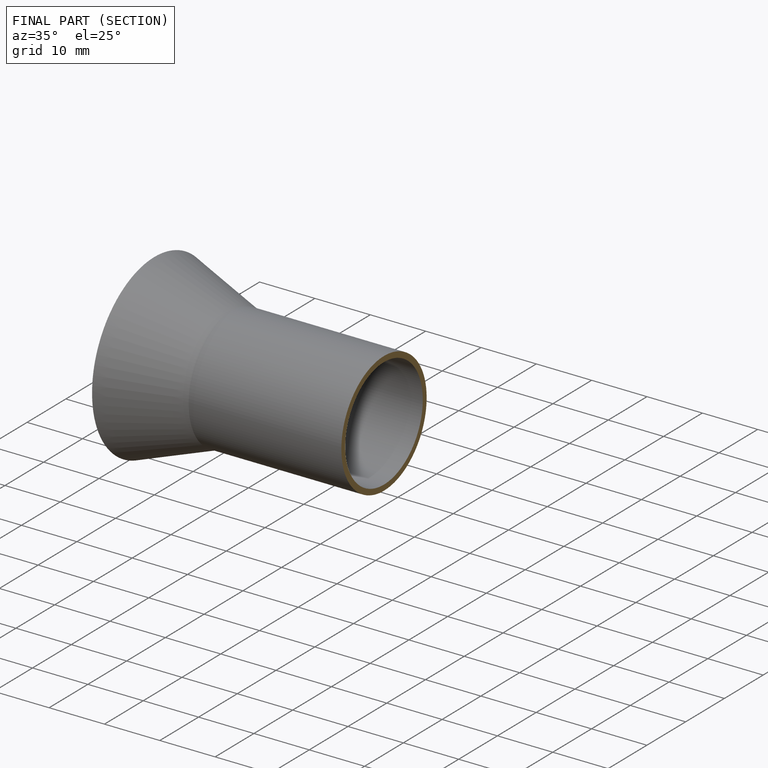
[diagram: finished part — half-section view (interior)]
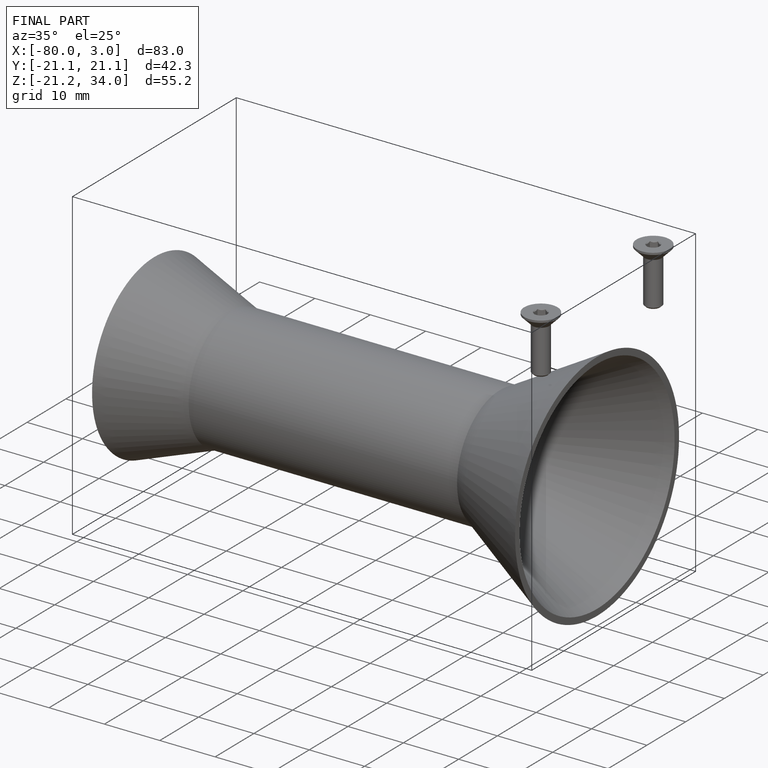
[diagram: finished part — iso view with bounding-box wireframe]
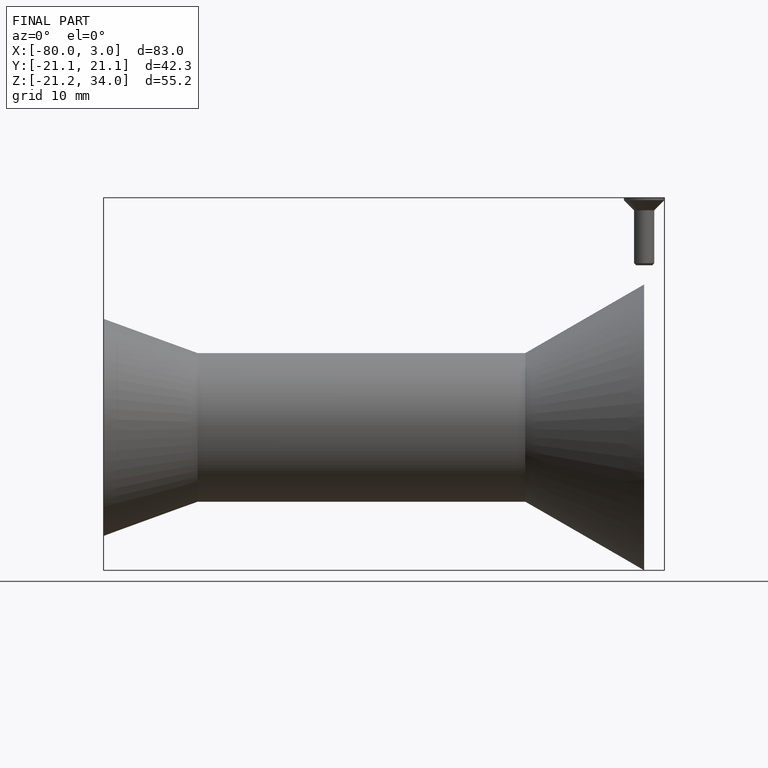
[diagram: finished part — front view with bounding-box wireframe]
